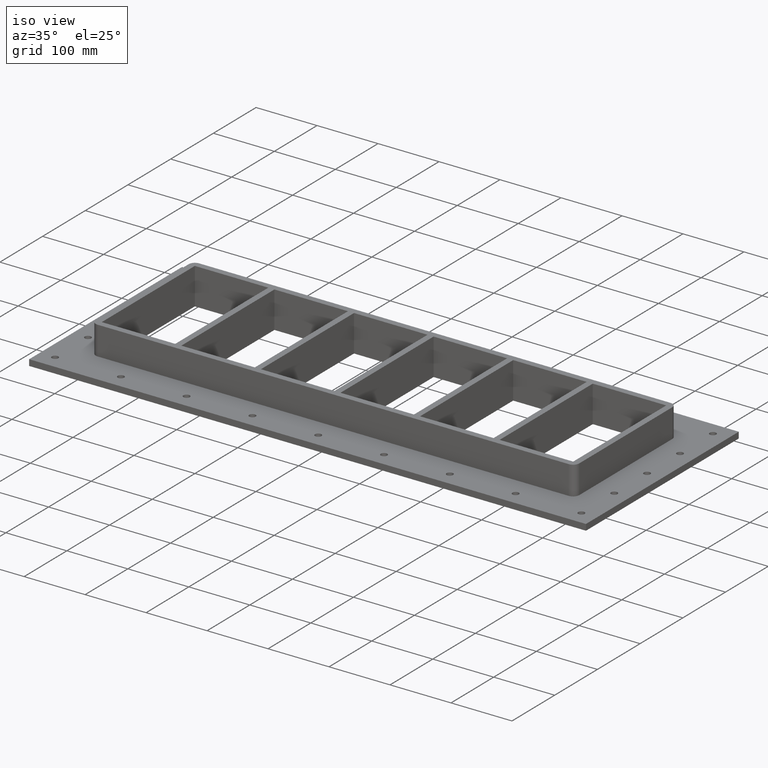
[diagram: clean part render]
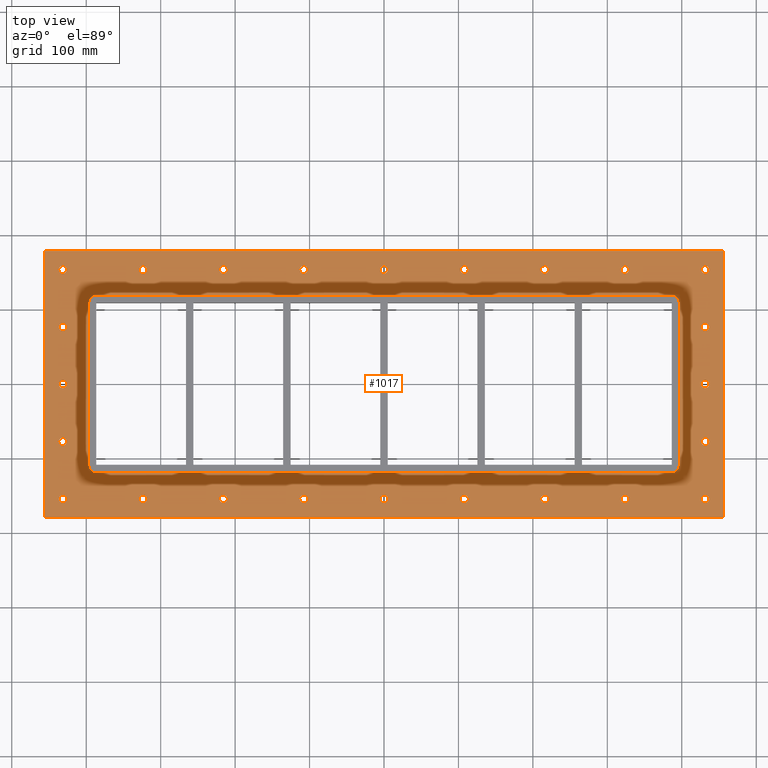
[diagram: tour spotlight — one face highlighted and labeled with its STEP entity id]
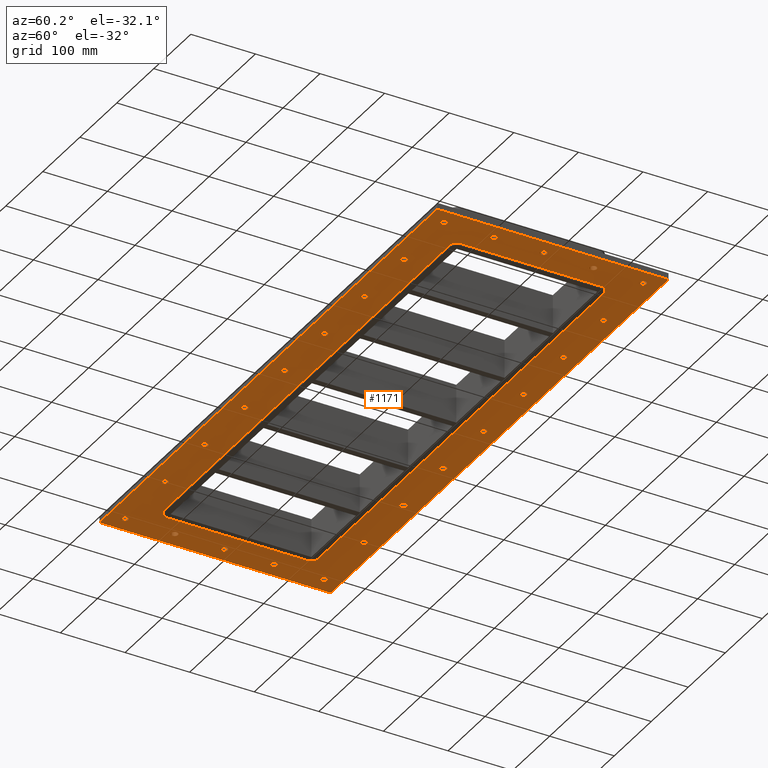
[diagram: tour spotlight — one face highlighted and labeled with its STEP entity id]
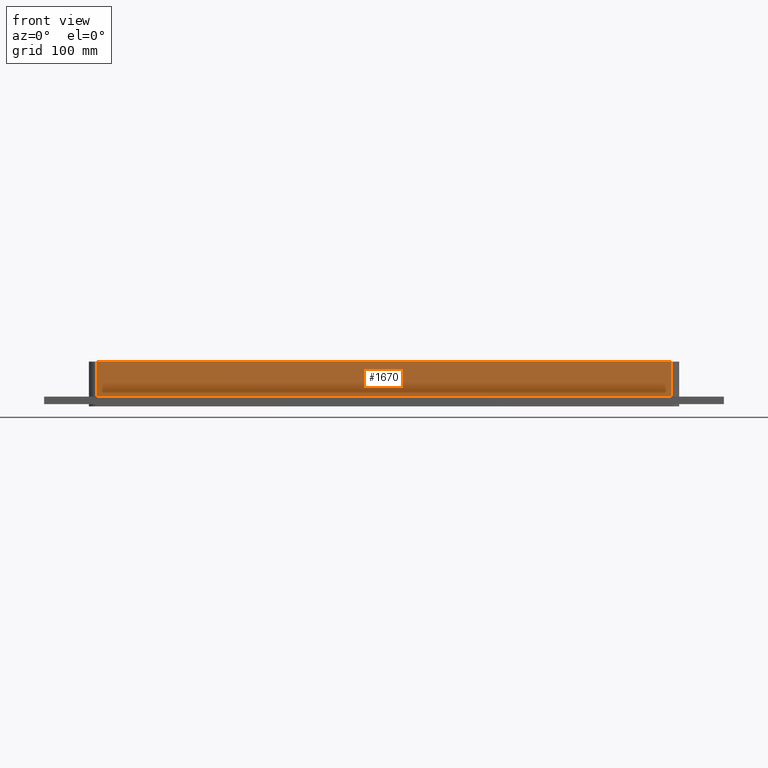
[diagram: tour spotlight — one face highlighted and labeled with its STEP entity id]
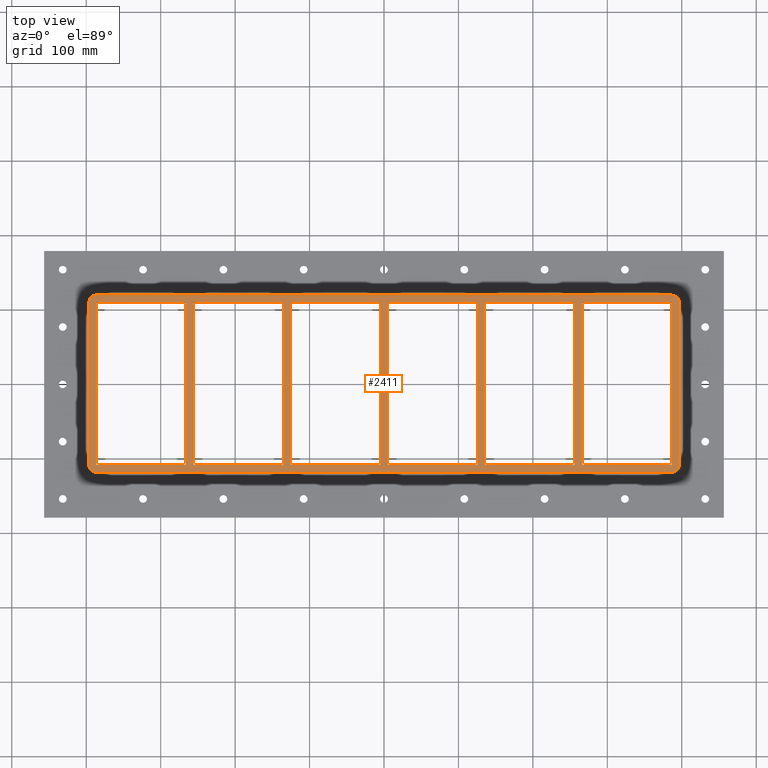
[diagram: tour spotlight — one face highlighted and labeled with its STEP entity id]
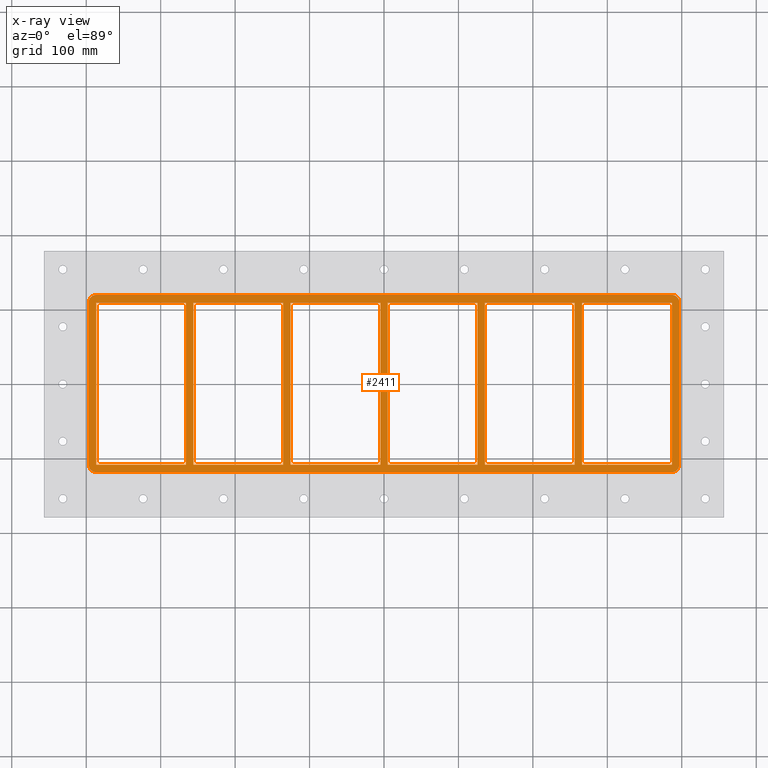
[diagram: x-ray of the same camera — body ghosted, this tour face saturated]
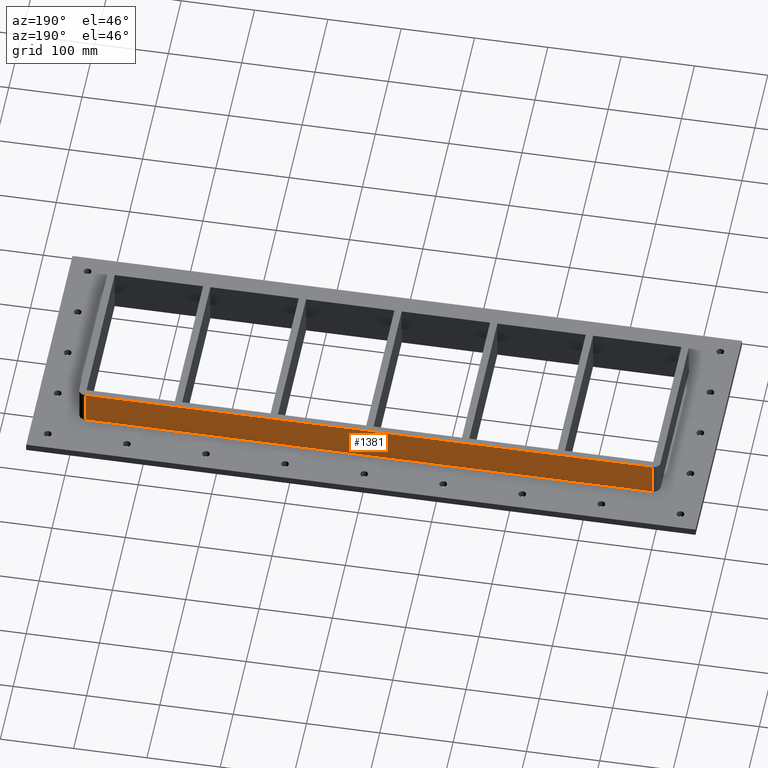
[diagram: tour spotlight — one face highlighted and labeled with its STEP entity id]
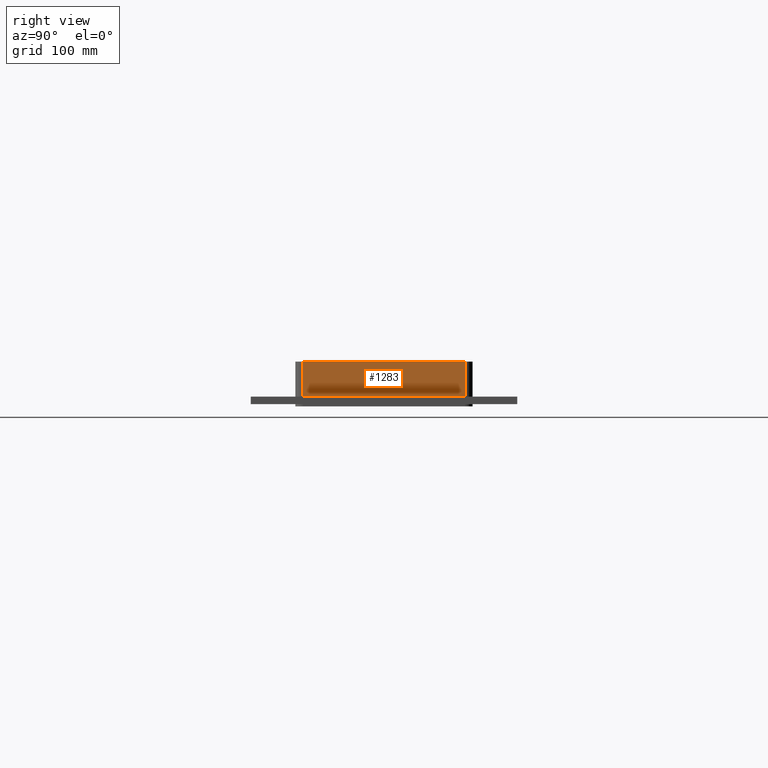
[diagram: tour spotlight — one face highlighted and labeled with its STEP entity id]
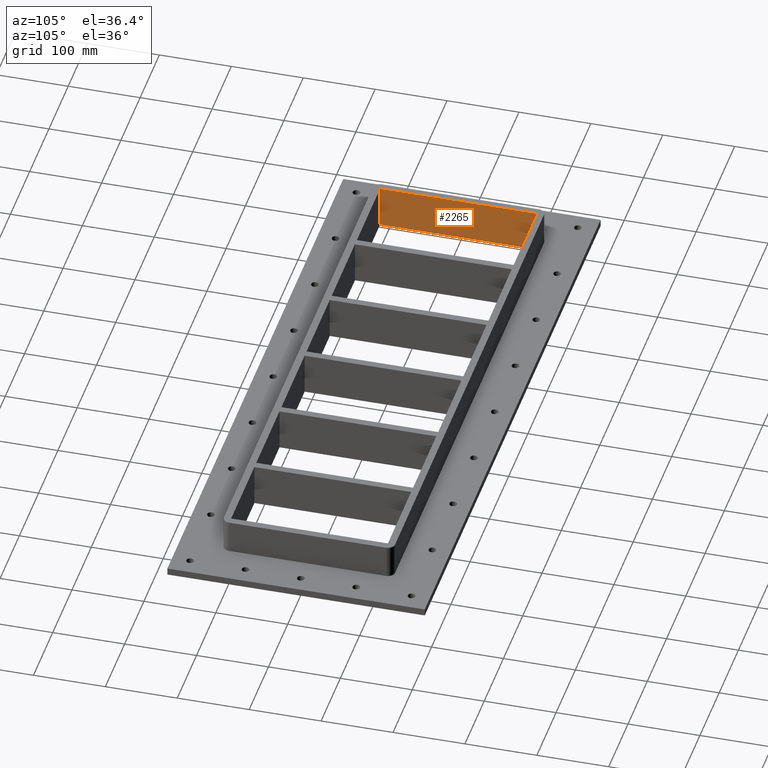
[diagram: tour spotlight — one face highlighted and labeled with its STEP entity id]
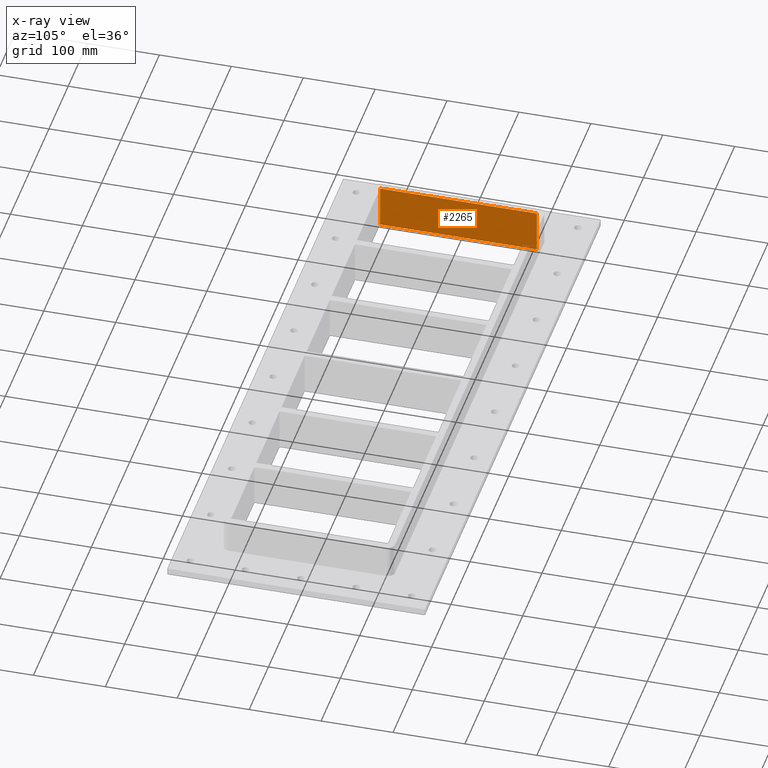
[diagram: x-ray of the same camera — body ghosted, this tour face saturated]
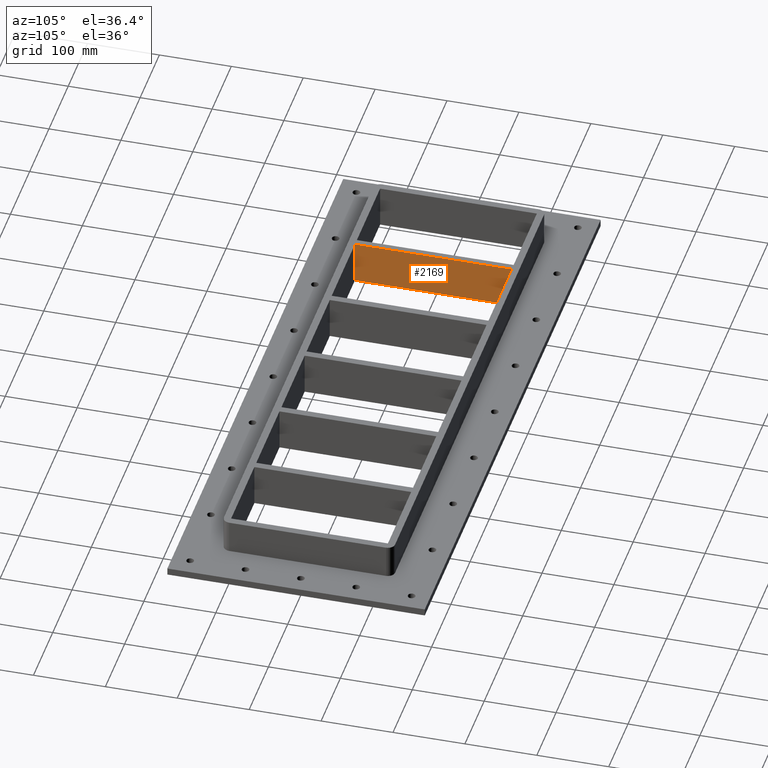
[diagram: tour spotlight — one face highlighted and labeled with its STEP entity id]
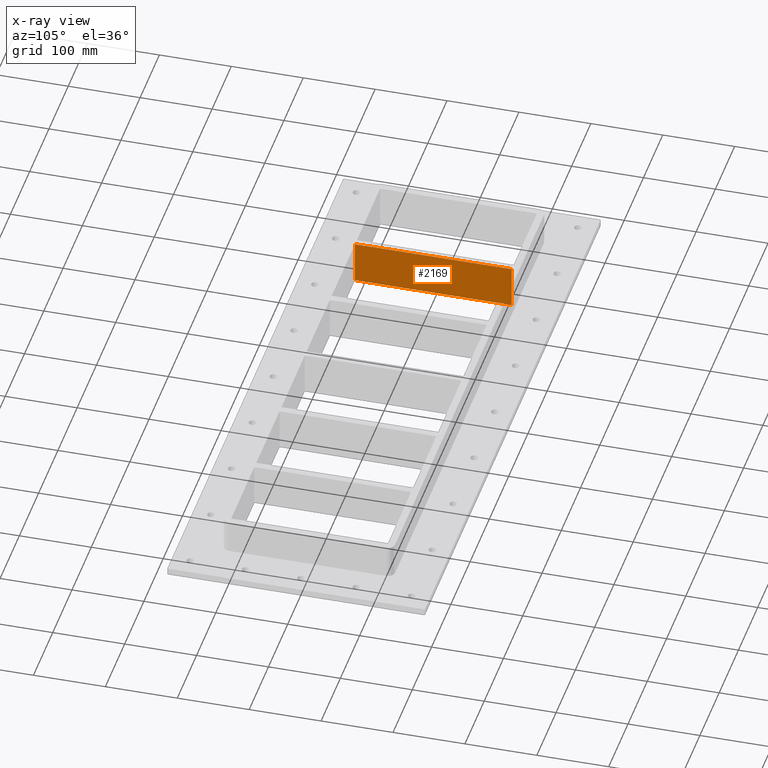
[diagram: x-ray of the same camera — body ghosted, this tour face saturated]
A machine part: a face-by-face anatomy tour. The part has 72 B-rep faces; the first image is the clean iso view, then the 8 largest visible faces are spotlighted one at a time (largest first), each with its STEP entity span.

Face 1 — top view, entity #1017. In plain terms, the highlighted planar face has unit normal (0, 0, 1).
Definition (entity closure, byte-faithful):
#84=CARTESIAN_POINT('',(-318.37500000000023,-154.00000000000003,-16.999999999999996));
#85=VERTEX_POINT('',#84);
#86=CARTESIAN_POINT('',(-323.62500000000017,-154.00000000000003,-17.000000000000028));
#87=DIRECTION('',(0.0,0.0,-1.0));
#88=DIRECTION('',(1.0,0.0,0.0));
#89=AXIS2_PLACEMENT_3D('',#86,#87,#88);
#90=CIRCLE('',#89,5.25);
#91=EDGE_CURVE('',#85,#85,#90,.T.);
#112=CARTESIAN_POINT('',(-210.50000000000006,-154.00000000000003,-16.999999999999996));
#113=VERTEX_POINT('',#112);
#114=CARTESIAN_POINT('',(-215.75000000000003,-154.00000000000003,-17.000000000000028));
#115=DIRECTION('',(0.0,0.0,-1.0));
#116=DIRECTION('',(1.0,0.0,0.0));
#117=AXIS2_PLACEMENT_3D('',#114,#115,#116);
#118=CIRCLE('',#117,5.25);
#119=EDGE_CURVE('',#113,#113,#118,.T.);
#140=CARTESIAN_POINT('',(-102.62500000000003,-154.00000000000003,-16.999999999999996));
#141=VERTEX_POINT('',#140);
#142=CARTESIAN_POINT('',(-107.87500000000001,-154.00000000000003,-17.000000000000028));
#143=DIRECTION('',(0.0,0.0,-1.0));
#144=DIRECTION('',(1.0,0.0,0.0));
#145=AXIS2_PLACEMENT_3D('',#142,#143,#144);
#146=CIRCLE('',#145,5.25);
#147=EDGE_CURVE('',#141,#141,#146,.T.);
#168=CARTESIAN_POINT('',(5.249999999999986,-154.0,-16.999999999999996));
#169=VERTEX_POINT('',#168);
#170=CARTESIAN_POINT('',(0.0,-154.0,-17.000000000000028));
#171=DIRECTION('',(0.0,0.0,-1.0));
#172=DIRECTION('',(1.0,0.0,0.0));
#173=AXIS2_PLACEMENT_3D('',#170,#171,#172);
#174=CIRCLE('',#173,5.25);
#175=EDGE_CURVE('',#169,#169,#174,.T.);
#196=CARTESIAN_POINT('',(113.125,-154.0,-16.999999999999996));
#197=VERTEX_POINT('',#196);
#198=CARTESIAN_POINT('',(107.87500000000001,-154.0,-17.000000000000028));
#199=DIRECTION('',(0.0,0.0,-1.0));
#200=DIRECTION('',(1.0,0.0,0.0));
#201=AXIS2_PLACEMENT_3D('',#198,#199,#200);
#202=CIRCLE('',#201,5.25);
#203=EDGE_CURVE('',#197,#197,#202,.T.);
#224=CARTESIAN_POINT('',(221.0,-154.0,-16.999999999999996));
#225=VERTEX_POINT('',#224);
#226=CARTESIAN_POINT('',(215.75000000000003,-154.0,-17.000000000000028));
#227=DIRECTION('',(0.0,0.0,-1.0));
#228=DIRECTION('',(1.0,0.0,0.0));
#229=AXIS2_PLACEMENT_3D('',#226,#227,#228);
#230=CIRCLE('',#229,5.25);
#231=EDGE_CURVE('',#225,#225,#230,.T.);
#252=CARTESIAN_POINT('',(328.875,-153.99999999999997,-16.999999999999996));
#253=VERTEX_POINT('',#252);
#254=CARTESIAN_POINT('',(323.62500000000006,-153.99999999999997,-17.000000000000028));
#255=DIRECTION('',(0.0,0.0,-1.0));
#256=DIRECTION('',(1.0,0.0,0.0));
#257=AXIS2_PLACEMENT_3D('',#254,#255,#256);
#258=CIRCLE('',#257,5.25);
#259=EDGE_CURVE('',#253,#253,#258,.T.);
#280=CARTESIAN_POINT('',(328.87500000000017,154.00000000000009,-16.999999999999996));
#281=VERTEX_POINT('',#280);
#282=CARTESIAN_POINT('',(323.62500000000017,154.00000000000009,-17.000000000000028));
#283=DIRECTION('',(0.0,0.0,-1.0));
#284=DIRECTION('',(1.0,0.0,0.0));
#285=AXIS2_PLACEMENT_3D('',#282,#283,#284);
#286=CIRCLE('',#285,5.25);
#287=EDGE_CURVE('',#281,#281,#286,.T.);
#308=CARTESIAN_POINT('',(221.0,154.00000000000006,-16.999999999999996));
#309=VERTEX_POINT('',#308);
#310=CARTESIAN_POINT('',(215.75000000000003,154.00000000000006,-17.000000000000028));
#311=DIRECTION('',(0.0,0.0,-1.0));
#312=DIRECTION('',(1.0,0.0,0.0));
#313=AXIS2_PLACEMENT_3D('',#310,#311,#312);
#314=CIRCLE('',#313,5.25);
#315=EDGE_CURVE('',#309,#309,#314,.T.);
#336=CARTESIAN_POINT('',(113.125,154.00000000000006,-16.999999999999996));
#337=VERTEX_POINT('',#336);
#338=CARTESIAN_POINT('',(107.87500000000001,154.00000000000006,-17.000000000000028));
#339=DIRECTION('',(0.0,0.0,-1.0));
#340=DIRECTION('',(1.0,0.0,0.0));
#341=AXIS2_PLACEMENT_3D('',#338,#339,#340);
#342=CIRCLE('',#341,5.25);
#343=EDGE_CURVE('',#337,#337,#342,.T.);
#364=CARTESIAN_POINT('',(5.249999999999986,154.00000000000003,-16.999999999999996));
#365=VERTEX_POINT('',#364);
#366=CARTESIAN_POINT('',(0.0,154.00000000000003,-17.000000000000028));
#367=DIRECTION('',(0.0,0.0,-1.0));
#368=DIRECTION('',(1.0,0.0,0.0));
#369=AXIS2_PLACEMENT_3D('',#366,#367,#368);
#370=CIRCLE('',#369,5.25);
#371=EDGE_CURVE('',#365,#365,#370,.T.);
#392=CARTESIAN_POINT('',(-102.62500000000003,154.00000000000003,-16.999999999999996));
#393=VERTEX_POINT('',#392);
#394=CARTESIAN_POINT('',(-107.87500000000001,154.00000000000003,-17.000000000000028));
#395=DIRECTION('',(0.0,0.0,-1.0));
#396=DIRECTION('',(1.0,0.0,0.0));
#397=AXIS2_PLACEMENT_3D('',#394,#395,#396);
#398=CIRCLE('',#397,5.25);
#399=EDGE_CURVE('',#393,#393,#398,.T.);
#420=CARTESIAN_POINT('',(-210.50000000000006,154.00000000000003,-16.999999999999996));
#421=VERTEX_POINT('',#420);
#422=CARTESIAN_POINT('',(-215.75000000000003,154.00000000000003,-17.000000000000028));
#423=DIRECTION('',(0.0,0.0,-1.0));
#424=DIRECTION('',(1.0,0.0,0.0));
#425=AXIS2_PLACEMENT_3D('',#422,#423,#424);
#426=CIRCLE('',#425,5.25);
#427=EDGE_CURVE('',#421,#421,#426,.T.);
#448=CARTESIAN_POINT('',(-318.37500000000006,154.00000000000003,-16.999999999999996));
#449=VERTEX_POINT('',#448);
#450=CARTESIAN_POINT('',(-323.62500000000006,154.00000000000003,-17.000000000000028));
#451=DIRECTION('',(0.0,0.0,-1.0));
#452=DIRECTION('',(1.0,0.0,0.0));
#453=AXIS2_PLACEMENT_3D('',#450,#451,#452);
#454=CIRCLE('',#453,5.25);
#455=EDGE_CURVE('',#449,#449,#454,.T.);
#476=CARTESIAN_POINT('',(436.75000000000006,-76.999999999999915,-16.999999999999996));
#477=VERTEX_POINT('',#476);
#478=CARTESIAN_POINT('',(431.50000000000006,-76.999999999999915,-17.000000000000028));
#479=DIRECTION('',(0.0,0.0,-1.0));
#480=DIRECTION('',(1.0,0.0,0.0));
#481=AXIS2_PLACEMENT_3D('',#478,#479,#480);
#482=CIRCLE('',#481,5.25);
#483=EDGE_CURVE('',#477,#477,#482,.T.);
#504=CARTESIAN_POINT('',(436.75000000000006,7.105427E-014,-16.999999999999996));
#505=VERTEX_POINT('',#504);
#506=CARTESIAN_POINT('',(431.50000000000006,7.105427E-014,-17.000000000000028));
#507=DIRECTION('',(0.0,0.0,-1.0));
#508=DIRECTION('',(1.0,0.0,0.0));
#509=AXIS2_PLACEMENT_3D('',#506,#507,#508);
#510=CIRCLE('',#509,5.25);
#511=EDGE_CURVE('',#505,#505,#510,.T.);
#532=CARTESIAN_POINT('',(436.75000000000006,77.000000000000085,-16.999999999999996));
#533=VERTEX_POINT('',#532);
#534=CARTESIAN_POINT('',(431.50000000000006,77.000000000000085,-17.000000000000028));
#535=DIRECTION('',(0.0,0.0,-1.0));
#536=DIRECTION('',(1.0,0.0,0.0));
#537=AXIS2_PLACEMENT_3D('',#534,#535,#536);
#538=CIRCLE('',#537,5.25);
#539=EDGE_CURVE('',#533,#533,#538,.T.);
#560=CARTESIAN_POINT('',(-426.25000000000006,76.999999999999915,-16.999999999999996));
#561=VERTEX_POINT('',#560);
#562=CARTESIAN_POINT('',(-431.50000000000006,76.999999999999915,-17.000000000000028));
#563=DIRECTION('',(0.0,0.0,-1.0));
#564=DIRECTION('',(1.0,0.0,0.0));
#565=AXIS2_PLACEMENT_3D('',#562,#563,#564);
#566=CIRCLE('',#565,5.25);
#567=EDGE_CURVE('',#561,#561,#566,.T.);
#588=CARTESIAN_POINT('',(-426.25000000000006,-7.105427E-014,-16.999999999999996));
#589=VERTEX_POINT('',#588);
#590=CARTESIAN_POINT('',(-431.50000000000006,-7.105427E-014,-17.000000000000028));
#591=DIRECTION('',(0.0,0.0,-1.0));
#592=DIRECTION('',(1.0,0.0,0.0));
#593=AXIS2_PLACEMENT_3D('',#590,#591,#592);
#594=CIRCLE('',#593,5.25);
#595=EDGE_CURVE('',#589,#589,#594,.T.);
#616=CARTESIAN_POINT('',(-426.25000000000006,-77.000000000000085,-16.999999999999996));
#617=VERTEX_POINT('',#616);
#618=CARTESIAN_POINT('',(-431.50000000000006,-77.000000000000085,-17.000000000000028));
#619=DIRECTION('',(0.0,0.0,-1.0));
#620=DIRECTION('',(1.0,0.0,0.0));
#621=AXIS2_PLACEMENT_3D('',#618,#619,#620);
#622=CIRCLE('',#621,5.25);
#623=EDGE_CURVE('',#617,#617,#622,.T.);
#644=CARTESIAN_POINT('',(-426.25000000000006,154.00000000000003,-16.999999999999996));
#645=VERTEX_POINT('',#644);
#646=CARTESIAN_POINT('',(-431.50000000000006,154.00000000000003,-17.000000000000028));
#647=DIRECTION('',(0.0,0.0,-1.0));
#648=DIRECTION('',(1.0,0.0,0.0));
#649=AXIS2_PLACEMENT_3D('',#646,#647,#648);
#650=CIRCLE('',#649,5.25);
#651=EDGE_CURVE('',#645,#645,#650,.T.);
#672=CARTESIAN_POINT('',(436.75000000000006,154.00000000000009,-16.999999999999996));
#673=VERTEX_POINT('',#672);
#674=CARTESIAN_POINT('',(431.50000000000006,154.00000000000009,-17.000000000000028));
#675=DIRECTION('',(0.0,0.0,-1.0));
#676=DIRECTION('',(1.0,0.0,0.0));
#677=AXIS2_PLACEMENT_3D('',#674,#675,#676);
#678=CIRCLE('',#677,5.25);
#679=EDGE_CURVE('',#673,#673,#678,.T.);
#700=CARTESIAN_POINT('',(436.75000000000006,-153.99999999999994,-16.999999999999996));
#701=VERTEX_POINT('',#700);
#702=CARTESIAN_POINT('',(431.50000000000006,-153.99999999999994,-17.000000000000028));
#703=DIRECTION('',(0.0,0.0,-1.0));
#704=DIRECTION('',(1.0,0.0,0.0));
#705=AXIS2_PLACEMENT_3D('',#702,#703,#704);
#706=CIRCLE('',#705,5.25);
#707=EDGE_CURVE('',#701,#701,#706,.T.);
#728=CARTESIAN_POINT('',(-426.25000000000006,-154.00000000000009,-16.999999999999996));
#729=VERTEX_POINT('',#728);
#730=CARTESIAN_POINT('',(-431.50000000000006,-154.00000000000009,-17.000000000000028));
#731=DIRECTION('',(0.0,0.0,-1.0));
#732=DIRECTION('',(1.0,0.0,0.0));
#733=AXIS2_PLACEMENT_3D('',#730,#731,#732);
#734=CIRCLE('',#733,5.25);
#735=EDGE_CURVE('',#729,#729,#734,.T.);
#755=CARTESIAN_POINT('',(-456.50000000000006,-179.00000000000006,-17.0));
#756=VERTEX_POINT('',#755);
#763=CARTESIAN_POINT('',(-456.50000000000006,179.00000000000003,-17.0));
#764=VERTEX_POINT('',#763);
#765=CARTESIAN_POINT('',(-456.50000000000006,179.0,-17.0));
#766=DIRECTION('',(0.0,-1.0,0.0));
#767=VECTOR('',#766,358.00000000000006);
#768=LINE('',#765,#767);
#769=EDGE_CURVE('',#764,#756,#768,.T.);
#794=CARTESIAN_POINT('',(456.50000000000006,179.00000000000009,-17.0));
#795=VERTEX_POINT('',#794);
#796=CARTESIAN_POINT('',(456.50000000000006,179.00000000000011,-17.0));
#797=DIRECTION('',(-1.0,0.0,0.0));
#798=VECTOR('',#797,913.00000000000011);
#799=LINE('',#796,#798);
#800=EDGE_CURVE('',#795,#764,#799,.T.);
#825=CARTESIAN_POINT('',(456.50000000000006,-178.99999999999994,-17.0));
#826=VERTEX_POINT('',#825);
#827=CARTESIAN_POINT('',(456.50000000000006,-178.99999999999997,-17.0));
#828=DIRECTION('',(0.0,1.0,0.0));
#829=VECTOR('',#828,358.00000000000006);
#830=LINE('',#827,#829);
#831=EDGE_CURVE('',#826,#795,#830,.T.);
#854=CARTESIAN_POINT('',(-456.50000000000006,-179.00000000000006,-17.0));
#855=DIRECTION('',(1.0,0.0,0.0));
#856=VECTOR('',#855,913.00000000000011);
#857=LINE('',#854,#856);
#858=EDGE_CURVE('',#756,#826,#857,.T.);
#864=CARTESIAN_POINT('',(0.0,3.684089E-014,-16.999999999999996));
#865=DIRECTION('',(0.0,0.0,1.0));
#866=DIRECTION('',(1.0,0.0,0.0));
#867=AXIS2_PLACEMENT_3D('',#864,#865,#866);
#868=PLANE('',#867);
#869=ORIENTED_EDGE('',*,*,#858,.T.);
#870=ORIENTED_EDGE('',*,*,#831,.T.);
#871=ORIENTED_EDGE('',*,*,#800,.T.);
#872=ORIENTED_EDGE('',*,*,#769,.T.);
#873=EDGE_LOOP('',(#869,#870,#871,#872));
#874=FACE_OUTER_BOUND('',#873,.T.);
#875=ORIENTED_EDGE('',*,*,#91,.T.);
#876=EDGE_LOOP('',(#875));
#877=FACE_BOUND('',#876,.T.);
#878=ORIENTED_EDGE('',*,*,#119,.T.);
#879=EDGE_LOOP('',(#878));
#880=FACE_BOUND('',#879,.T.);
#881=ORIENTED_EDGE('',*,*,#147,.T.);
#882=EDGE_LOOP('',(#881));
#883=FACE_BOUND('',#882,.T.);
#884=ORIENTED_EDGE('',*,*,#175,.T.);
#885=EDGE_LOOP('',(#884));
#886=FACE_BOUND('',#885,.T.);
#887=ORIENTED_EDGE('',*,*,#203,.T.);
#888=EDGE_LOOP('',(#887));
#889=FACE_BOUND('',#888,.T.);
#890=ORIENTED_EDGE('',*,*,#231,.T.);
#891=EDGE_LOOP('',(#890));
#892=FACE_BOUND('',#891,.T.);
#893=ORIENTED_EDGE('',*,*,#259,.T.);
#894=EDGE_LOOP('',(#893));
#895=FACE_BOUND('',#894,.T.);
#896=ORIENTED_EDGE('',*,*,#287,.T.);
#897=EDGE_LOOP('',(#896));
#898=FACE_BOUND('',#897,.T.);
#899=ORIENTED_EDGE('',*,*,#315,.T.);
#900=EDGE_LOOP('',(#899));
#901=FACE_BOUND('',#900,.T.);
#902=ORIENTED_EDGE('',*,*,#343,.T.);
#903=EDGE_LOOP('',(#902));
#904=FACE_BOUND('',#903,.T.);
#905=ORIENTED_EDGE('',*,*,#371,.T.);
#906=EDGE_LOOP('',(#905));
#907=FACE_BOUND('',#906,.T.);
#908=ORIENTED_EDGE('',*,*,#399,.T.);
#909=EDGE_LOOP('',(#908));
#910=FACE_BOUND('',#909,.T.);
#911=ORIENTED_EDGE('',*,*,#427,.T.);
#912=EDGE_LOOP('',(#911));
#913=FACE_BOUND('',#912,.T.);
#914=ORIENTED_EDGE('',*,*,#455,.T.);
#915=EDGE_LOOP('',(#914));
#916=FACE_BOUND('',#915,.T.);
#917=ORIENTED_EDGE('',*,*,#483,.T.);
#918=EDGE_LOOP('',(#917));
#919=FACE_BOUND('',#918,.T.);
#920=ORIENTED_EDGE('',*,*,#511,.T.);
#921=EDGE_LOOP('',(#920));
#922=FACE_BOUND('',#921,.T.);
#923=ORIENTED_EDGE('',*,*,#539,.T.);
#924=EDGE_LOOP('',(#923));
#925=FACE_BOUND('',#924,.T.);
#926=ORIENTED_EDGE('',*,*,#567,.T.);
#927=EDGE_LOOP('',(#926));
#928=FACE_BOUND('',#927,.T.);
#929=ORIENTED_EDGE('',*,*,#595,.T.);
#930=EDGE_LOOP('',(#929));
#931=FACE_BOUND('',#930,.T.);
#932=ORIENTED_EDGE('',*,*,#623,.T.);
#933=EDGE_LOOP('',(#932));
#934=FACE_BOUND('',#933,.T.);
#935=ORIENTED_EDGE('',*,*,#651,.T.);
#936=EDGE_LOOP('',(#935));
#937=FACE_BOUND('',#936,.T.);
#938=ORIENTED_EDGE('',*,*,#679,.T.);
#939=EDGE_LOOP('',(#938));
#940=FACE_BOUND('',#939,.T.);
#941=ORIENTED_EDGE('',*,*,#707,.T.);
#942=EDGE_LOOP('',(#941));
#943=FACE_BOUND('',#942,.T.);
#944=ORIENTED_EDGE('',*,*,#735,.T.);
#945=EDGE_LOOP('',(#944));
#946=FACE_BOUND('',#945,.T.);
#947=CARTESIAN_POINT('',(396.50000000000006,109.00000000000007,-17.0));
#948=VERTEX_POINT('',#947);
#949=CARTESIAN_POINT('',(386.50000000000006,119.00000000000007,-17.0));
#950=VERTEX_POINT('',#949);
#951=CARTESIAN_POINT('',(386.50000000000006,108.99999999999999,-16.999999999999996));
#952=DIRECTION('',(0.0,0.0,1.0));
#953=DIRECTION('',(0.707106781186547,0.707106781186547,0.0));
#954=AXIS2_PLACEMENT_3D('',#951,#952,#953);
#955=CIRCLE('',#954,9.999999999999998);
#956=EDGE_CURVE('',#948,#950,#955,.T.);
#957=ORIENTED_EDGE('',*,*,#956,.F.);
#958=CARTESIAN_POINT('',(396.50000000000006,-108.99999999999997,-17.0));
#959=VERTEX_POINT('',#958);
#960=CARTESIAN_POINT('',(396.50000000000006,-108.99999999999997,-16.999999999999996));
#961=DIRECTION('',(0.0,1.0,0.0));
#962=VECTOR('',#961,218.00000000000006);
#963=LINE('',#960,#962);
#964=EDGE_CURVE('',#959,#948,#963,.T.);
#965=ORIENTED_EDGE('',*,*,#964,.F.);
#966=CARTESIAN_POINT('',(386.50000000000006,-118.99999999999997,-17.0));
#967=VERTEX_POINT('',#966);
#968=CARTESIAN_POINT('',(386.50000000000006,-108.99999999999999,-16.999999999999996));
#969=DIRECTION('',(0.0,0.0,1.0));
#970=DIRECTION('',(0.707106781186547,-0.707106781186547,0.0));
#971=AXIS2_PLACEMENT_3D('',#968,#969,#970);
#972=CIRCLE('',#971,9.999999999999998);
#973=EDGE_CURVE('',#967,#959,#972,.T.);
#974=ORIENTED_EDGE('',*,*,#973,.F.);
#975=CARTESIAN_POINT('',(-386.50000000000006,-119.00000000000007,-17.0));
#976=VERTEX_POINT('',#975);
#977=CARTESIAN_POINT('',(-386.50000000000006,-118.99999999999999,-16.999999999999996));
#978=DIRECTION('',(1.0,0.0,0.0));
#979=VECTOR('',#978,773.00000000000011);
#980=LINE('',#977,#979);
#981=EDGE_CURVE('',#976,#967,#980,.T.);
#982=ORIENTED_EDGE('',*,*,#981,.F.);
#983=CARTESIAN_POINT('',(-396.50000000000006,-109.00000000000007,-17.0));
#984=VERTEX_POINT('',#983);
#985=CARTESIAN_POINT('',(-386.50000000000011,-108.99999999999999,-16.999999999999996));
#986=DIRECTION('',(0.0,0.0,1.0));
#987=DIRECTION('',(-0.707106781186547,-0.707106781186547,0.0));
#988=AXIS2_PLACEMENT_3D('',#985,#986,#987);
#989=CIRCLE('',#988,9.999999999999998);
#990=EDGE_CURVE('',#984,#976,#989,.T.);
#991=ORIENTED_EDGE('',*,*,#990,.F.);
#992=CARTESIAN_POINT('',(-396.50000000000006,108.99999999999997,-17.0));
#993=VERTEX_POINT('',#992);
#994=CARTESIAN_POINT('',(-396.50000000000011,108.99999999999997,-16.999999999999996));
#995=DIRECTION('',(0.0,-1.0,0.0));
#996=VECTOR('',#995,218.00000000000003);
#997=LINE('',#994,#996);
#998=EDGE_CURVE('',#993,#984,#997,.T.);
#999=ORIENTED_EDGE('',*,*,#998,.F.);
#1000=CARTESIAN_POINT('',(-386.50000000000006,118.99999999999999,-17.0));
#1001=VERTEX_POINT('',#1000);
#1002=CARTESIAN_POINT('',(-386.50000000000011,109.00000000000006,-16.999999999999996));
#1003=DIRECTION('',(0.0,0.0,1.0));
#1004=DIRECTION('',(-0.707106781186547,0.707106781186547,0.0));
#1005=AXIS2_PLACEMENT_3D('',#1002,#1003,#1004);
#1006=CIRCLE('',#1005,9.999999999999998);
#1007=EDGE_CURVE('',#1001,#993,#1006,.T.);
#1008=ORIENTED_EDGE('',*,*,#1007,.F.);
#1009=CARTESIAN_POINT('',(386.50000000000006,118.99999999999999,-16.999999999999996));
#1010=DIRECTION('',(-1.0,0.0,0.0));
#1011=VECTOR('',#1010,773.00000000000023);
#1012=LINE('',#1009,#1011);
#1013=EDGE_CURVE('',#950,#1001,#1012,.T.);
#1014=ORIENTED_EDGE('',*,*,#1013,.F.);
#1015=EDGE_LOOP('',(#957,#965,#974,#982,#991,#999,#1008,#1014));
#1016=FACE_BOUND('',#1015,.T.);
#1017=ADVANCED_FACE('',(#874,#877,#880,#883,#886,#889,#892,#895,#898,#901,#904,#907,#910,#913,#916,#919,#922,#925,#928,#931,#934,#937,#940,#943,#946,#1016),#868,.T.);

Face 2 — auxiliary view, entity #1171. In plain terms, the highlighted planar face has unit normal (0, 0, 1).
Definition (entity closure, byte-faithful):
#73=CARTESIAN_POINT('',(-328.87500000000017,-154.00000000000003,-27.000000000000028));
#74=VERTEX_POINT('',#73);
#75=CARTESIAN_POINT('',(-323.62500000000017,-154.00000000000003,-27.000000000000028));
#76=DIRECTION('',(0.0,0.0,1.0));
#77=DIRECTION('',(1.0,0.0,0.0));
#78=AXIS2_PLACEMENT_3D('',#75,#76,#77);
#79=CIRCLE('',#78,5.25);
#80=EDGE_CURVE('',#74,#74,#79,.T.);
#101=CARTESIAN_POINT('',(-221.0,-154.00000000000003,-27.000000000000028));
#102=VERTEX_POINT('',#101);
#103=CARTESIAN_POINT('',(-215.75000000000003,-154.00000000000003,-27.000000000000028));
#104=DIRECTION('',(0.0,0.0,1.0));
#105=DIRECTION('',(1.0,0.0,0.0));
#106=AXIS2_PLACEMENT_3D('',#103,#104,#105);
#107=CIRCLE('',#106,5.25);
#108=EDGE_CURVE('',#102,#102,#107,.T.);
#129=CARTESIAN_POINT('',(-113.125,-154.00000000000003,-27.000000000000028));
#130=VERTEX_POINT('',#129);
#131=CARTESIAN_POINT('',(-107.87500000000001,-154.00000000000003,-27.000000000000028));
#132=DIRECTION('',(0.0,0.0,1.0));
#133=DIRECTION('',(1.0,0.0,0.0));
#134=AXIS2_PLACEMENT_3D('',#131,#132,#133);
#135=CIRCLE('',#134,5.25);
#136=EDGE_CURVE('',#130,#130,#135,.T.);
#157=CARTESIAN_POINT('',(-5.249999999999986,-154.0,-27.000000000000028));
#158=VERTEX_POINT('',#157);
#159=CARTESIAN_POINT('',(0.0,-154.0,-27.000000000000028));
#160=DIRECTION('',(0.0,0.0,1.0));
#161=DIRECTION('',(1.0,0.0,0.0));
#162=AXIS2_PLACEMENT_3D('',#159,#160,#161);
#163=CIRCLE('',#162,5.25);
#164=EDGE_CURVE('',#158,#158,#163,.T.);
#185=CARTESIAN_POINT('',(102.62500000000003,-154.0,-27.000000000000028));
#186=VERTEX_POINT('',#185);
#187=CARTESIAN_POINT('',(107.87500000000001,-154.0,-27.000000000000028));
#188=DIRECTION('',(0.0,0.0,1.0));
#189=DIRECTION('',(1.0,0.0,0.0));
#190=AXIS2_PLACEMENT_3D('',#187,#188,#189);
#191=CIRCLE('',#190,5.25);
#192=EDGE_CURVE('',#186,#186,#191,.T.);
#213=CARTESIAN_POINT('',(210.50000000000006,-154.0,-27.000000000000028));
#214=VERTEX_POINT('',#213);
#215=CARTESIAN_POINT('',(215.75000000000003,-154.0,-27.000000000000028));
#216=DIRECTION('',(0.0,0.0,1.0));
#217=DIRECTION('',(1.0,0.0,0.0));
#218=AXIS2_PLACEMENT_3D('',#215,#216,#217);
#219=CIRCLE('',#218,5.25);
#220=EDGE_CURVE('',#214,#214,#219,.T.);
#241=CARTESIAN_POINT('',(318.37500000000006,-153.99999999999997,-27.000000000000028));
#242=VERTEX_POINT('',#241);
#243=CARTESIAN_POINT('',(323.62500000000006,-153.99999999999997,-27.000000000000028));
#244=DIRECTION('',(0.0,0.0,1.0));
#245=DIRECTION('',(1.0,0.0,0.0));
#246=AXIS2_PLACEMENT_3D('',#243,#244,#245);
#247=CIRCLE('',#246,5.25);
#248=EDGE_CURVE('',#242,#242,#247,.T.);
#269=CARTESIAN_POINT('',(318.37500000000023,154.00000000000009,-27.000000000000028));
#270=VERTEX_POINT('',#269);
#271=CARTESIAN_POINT('',(323.62500000000017,154.00000000000009,-27.000000000000028));
#272=DIRECTION('',(0.0,0.0,1.0));
#273=DIRECTION('',(1.0,0.0,0.0));
#274=AXIS2_PLACEMENT_3D('',#271,#272,#273);
#275=CIRCLE('',#274,5.25);
#276=EDGE_CURVE('',#270,#270,#275,.T.);
#297=CARTESIAN_POINT('',(210.50000000000006,154.00000000000006,-27.000000000000028));
#298=VERTEX_POINT('',#297);
#299=CARTESIAN_POINT('',(215.75000000000003,154.00000000000006,-27.000000000000028));
#300=DIRECTION('',(0.0,0.0,1.0));
#301=DIRECTION('',(1.0,0.0,0.0));
#302=AXIS2_PLACEMENT_3D('',#299,#300,#301);
#303=CIRCLE('',#302,5.25);
#304=EDGE_CURVE('',#298,#298,#303,.T.);
#325=CARTESIAN_POINT('',(102.62500000000003,154.00000000000006,-27.000000000000028));
#326=VERTEX_POINT('',#325);
#327=CARTESIAN_POINT('',(107.87500000000001,154.00000000000006,-27.000000000000028));
#328=DIRECTION('',(0.0,0.0,1.0));
#329=DIRECTION('',(1.0,0.0,0.0));
#330=AXIS2_PLACEMENT_3D('',#327,#328,#329);
#331=CIRCLE('',#330,5.25);
#332=EDGE_CURVE('',#326,#326,#331,.T.);
#353=CARTESIAN_POINT('',(-5.249999999999986,154.00000000000003,-27.000000000000028));
#354=VERTEX_POINT('',#353);
#355=CARTESIAN_POINT('',(0.0,154.00000000000003,-27.000000000000028));
#356=DIRECTION('',(0.0,0.0,1.0));
#357=DIRECTION('',(1.0,0.0,0.0));
#358=AXIS2_PLACEMENT_3D('',#355,#356,#357);
#359=CIRCLE('',#358,5.25);
#360=EDGE_CURVE('',#354,#354,#359,.T.);
#381=CARTESIAN_POINT('',(-113.125,154.00000000000003,-27.000000000000028));
#382=VERTEX_POINT('',#381);
#383=CARTESIAN_POINT('',(-107.87500000000001,154.00000000000003,-27.000000000000028));
#384=DIRECTION('',(0.0,0.0,1.0));
#385=DIRECTION('',(1.0,0.0,0.0));
#386=AXIS2_PLACEMENT_3D('',#383,#384,#385);
#387=CIRCLE('',#386,5.25);
#388=EDGE_CURVE('',#382,#382,#387,.T.);
#409=CARTESIAN_POINT('',(-221.0,154.00000000000003,-27.000000000000028));
#410=VERTEX_POINT('',#409);
#411=CARTESIAN_POINT('',(-215.75000000000003,154.00000000000003,-27.000000000000028));
#412=DIRECTION('',(0.0,0.0,1.0));
#413=DIRECTION('',(1.0,0.0,0.0));
#414=AXIS2_PLACEMENT_3D('',#411,#412,#413);
#415=CIRCLE('',#414,5.25);
#416=EDGE_CURVE('',#410,#410,#415,.T.);
#437=CARTESIAN_POINT('',(-328.875,154.00000000000003,-27.000000000000028));
#438=VERTEX_POINT('',#437);
#439=CARTESIAN_POINT('',(-323.62500000000006,154.00000000000003,-27.000000000000028));
#440=DIRECTION('',(0.0,0.0,1.0));
#441=DIRECTION('',(1.0,0.0,0.0));
#442=AXIS2_PLACEMENT_3D('',#439,#440,#441);
#443=CIRCLE('',#442,5.25);
#444=EDGE_CURVE('',#438,#438,#443,.T.);
#465=CARTESIAN_POINT('',(426.25000000000006,-76.999999999999915,-27.000000000000028));
#466=VERTEX_POINT('',#465);
#467=CARTESIAN_POINT('',(431.50000000000006,-76.999999999999915,-27.000000000000028));
#468=DIRECTION('',(0.0,0.0,1.0));
#469=DIRECTION('',(1.0,0.0,0.0));
#470=AXIS2_PLACEMENT_3D('',#467,#468,#469);
#471=CIRCLE('',#470,5.25);
#472=EDGE_CURVE('',#466,#466,#471,.T.);
#493=CARTESIAN_POINT('',(426.25000000000006,7.105427E-014,-27.000000000000028));
#494=VERTEX_POINT('',#493);
#495=CARTESIAN_POINT('',(431.50000000000006,7.105427E-014,-27.000000000000028));
#496=DIRECTION('',(0.0,0.0,1.0));
#497=DIRECTION('',(1.0,0.0,0.0));
#498=AXIS2_PLACEMENT_3D('',#495,#496,#497);
#499=CIRCLE('',#498,5.25);
#500=EDGE_CURVE('',#494,#494,#499,.T.);
#521=CARTESIAN_POINT('',(426.25000000000006,77.000000000000085,-27.000000000000028));
#522=VERTEX_POINT('',#521);
#523=CARTESIAN_POINT('',(431.50000000000006,77.000000000000085,-27.000000000000028));
#524=DIRECTION('',(0.0,0.0,1.0));
#525=DIRECTION('',(1.0,0.0,0.0));
#526=AXIS2_PLACEMENT_3D('',#523,#524,#525);
#527=CIRCLE('',#526,5.25);
#528=EDGE_CURVE('',#522,#522,#527,.T.);
#549=CARTESIAN_POINT('',(-436.75000000000006,76.999999999999915,-27.000000000000028));
#550=VERTEX_POINT('',#549);
#551=CARTESIAN_POINT('',(-431.50000000000006,76.999999999999915,-27.000000000000028));
#552=DIRECTION('',(0.0,0.0,1.0));
#553=DIRECTION('',(1.0,0.0,0.0));
#554=AXIS2_PLACEMENT_3D('',#551,#552,#553);
#555=CIRCLE('',#554,5.25);
#556=EDGE_CURVE('',#550,#550,#555,.T.);
#577=CARTESIAN_POINT('',(-436.75000000000006,-7.105427E-014,-27.000000000000028));
#578=VERTEX_POINT('',#577);
#579=CARTESIAN_POINT('',(-431.50000000000006,-7.105427E-014,-27.000000000000028));
#580=DIRECTION('',(0.0,0.0,1.0));
#581=DIRECTION('',(1.0,0.0,0.0));
#582=AXIS2_PLACEMENT_3D('',#579,#580,#581);
#583=CIRCLE('',#582,5.25);
#584=EDGE_CURVE('',#578,#578,#583,.T.);
#605=CARTESIAN_POINT('',(-436.75000000000006,-77.000000000000085,-27.000000000000028));
#606=VERTEX_POINT('',#605);
#607=CARTESIAN_POINT('',(-431.50000000000006,-77.000000000000085,-27.000000000000028));
#608=DIRECTION('',(0.0,0.0,1.0));
#609=DIRECTION('',(1.0,0.0,0.0));
#610=AXIS2_PLACEMENT_3D('',#607,#608,#609);
#611=CIRCLE('',#610,5.25);
#612=EDGE_CURVE('',#606,#606,#611,.T.);
#633=CARTESIAN_POINT('',(-436.75000000000006,154.00000000000003,-27.000000000000028));
#634=VERTEX_POINT('',#633);
#635=CARTESIAN_POINT('',(-431.50000000000006,154.00000000000003,-27.000000000000028));
#636=DIRECTION('',(0.0,0.0,1.0));
#637=DIRECTION('',(1.0,0.0,0.0));
#638=AXIS2_PLACEMENT_3D('',#635,#636,#637);
#639=CIRCLE('',#638,5.25);
#640=EDGE_CURVE('',#634,#634,#639,.T.);
#661=CARTESIAN_POINT('',(426.25000000000006,154.00000000000009,-27.000000000000028));
#662=VERTEX_POINT('',#661);
#663=CARTESIAN_POINT('',(431.50000000000006,154.00000000000009,-27.000000000000028));
#664=DIRECTION('',(0.0,0.0,1.0));
#665=DIRECTION('',(1.0,0.0,0.0));
#666=AXIS2_PLACEMENT_3D('',#663,#664,#665);
#667=CIRCLE('',#666,5.25);
#668=EDGE_CURVE('',#662,#662,#667,.T.);
#689=CARTESIAN_POINT('',(426.25000000000006,-153.99999999999994,-27.000000000000028));
#690=VERTEX_POINT('',#689);
#691=CARTESIAN_POINT('',(431.50000000000006,-153.99999999999994,-27.000000000000028));
#692=DIRECTION('',(0.0,0.0,1.0));
#693=DIRECTION('',(1.0,0.0,0.0));
#694=AXIS2_PLACEMENT_3D('',#691,#692,#693);
#695=CIRCLE('',#694,5.25);
#696=EDGE_CURVE('',#690,#690,#695,.T.);
#717=CARTESIAN_POINT('',(-436.75000000000006,-154.00000000000009,-27.000000000000028));
#718=VERTEX_POINT('',#717);
#719=CARTESIAN_POINT('',(-431.50000000000006,-154.00000000000009,-27.000000000000028));
#720=DIRECTION('',(0.0,0.0,1.0));
#721=DIRECTION('',(1.0,0.0,0.0));
#722=AXIS2_PLACEMENT_3D('',#719,#720,#721);
#723=CIRCLE('',#722,5.25);
#724=EDGE_CURVE('',#718,#718,#723,.T.);
#745=CARTESIAN_POINT('',(-456.50000000000006,-179.00000000000006,-27.0));
#746=VERTEX_POINT('',#745);
#747=CARTESIAN_POINT('',(-456.50000000000006,179.0,-27.0));
#748=VERTEX_POINT('',#747);
#749=CARTESIAN_POINT('',(-456.50000000000006,-179.00000000000006,-27.0));
#750=DIRECTION('',(0.0,1.0,0.0));
#751=VECTOR('',#750,358.00000000000006);
#752=LINE('',#749,#751);
#753=EDGE_CURVE('',#746,#748,#752,.T.);
#785=CARTESIAN_POINT('',(456.50000000000006,179.00000000000009,-27.0));
#786=VERTEX_POINT('',#785);
#787=CARTESIAN_POINT('',(-456.50000000000006,179.0,-27.0));
#788=DIRECTION('',(1.0,0.0,0.0));
#789=VECTOR('',#788,913.00000000000011);
#790=LINE('',#787,#789);
#791=EDGE_CURVE('',#748,#786,#790,.T.);
#816=CARTESIAN_POINT('',(456.50000000000006,-178.99999999999994,-27.0));
#817=VERTEX_POINT('',#816);
#818=CARTESIAN_POINT('',(456.50000000000006,179.00000000000009,-27.0));
#819=DIRECTION('',(0.0,-1.0,0.0));
#820=VECTOR('',#819,358.00000000000006);
#821=LINE('',#818,#820);
#822=EDGE_CURVE('',#786,#817,#821,.T.);
#847=CARTESIAN_POINT('',(456.50000000000006,-178.99999999999994,-27.0));
#848=DIRECTION('',(-1.0,0.0,0.0));
#849=VECTOR('',#848,913.00000000000011);
#850=LINE('',#847,#849);
#851=EDGE_CURVE('',#817,#746,#850,.T.);
#1018=CARTESIAN_POINT('',(0.0,3.684089E-014,-26.999999999999996));
#1019=DIRECTION('',(0.0,0.0,1.0));
#1020=DIRECTION('',(1.0,0.0,0.0));
#1021=AXIS2_PLACEMENT_3D('',#1018,#1019,#1020);
#1022=PLANE('',#1021);
#1023=ORIENTED_EDGE('',*,*,#851,.T.);
#1024=ORIENTED_EDGE('',*,*,#753,.T.);
#1025=ORIENTED_EDGE('',*,*,#791,.T.);
#1026=ORIENTED_EDGE('',*,*,#822,.T.);
#1027=EDGE_LOOP('',(#1023,#1024,#1025,#1026));
#1028=FACE_OUTER_BOUND('',#1027,.T.);
#1029=ORIENTED_EDGE('',*,*,#80,.T.);
#1030=EDGE_LOOP('',(#1029));
#1031=FACE_BOUND('',#1030,.T.);
#1032=ORIENTED_EDGE('',*,*,#108,.T.);
#1033=EDGE_LOOP('',(#1032));
#1034=FACE_BOUND('',#1033,.T.);
#1035=ORIENTED_EDGE('',*,*,#136,.T.);
#1036=EDGE_LOOP('',(#1035));
#1037=FACE_BOUND('',#1036,.T.);
#1038=ORIENTED_EDGE('',*,*,#164,.T.);
#1039=EDGE_LOOP('',(#1038));
#1040=FACE_BOUND('',#1039,.T.);
#1041=ORIENTED_EDGE('',*,*,#192,.T.);
#1042=EDGE_LOOP('',(#1041));
#1043=FACE_BOUND('',#1042,.T.);
#1044=ORIENTED_EDGE('',*,*,#220,.T.);
#1045=EDGE_LOOP('',(#1044));
#1046=FACE_BOUND('',#1045,.T.);
#1047=ORIENTED_EDGE('',*,*,#248,.T.);
#1048=EDGE_LOOP('',(#1047));
#1049=FACE_BOUND('',#1048,.T.);
#1050=ORIENTED_EDGE('',*,*,#276,.T.);
#1051=EDGE_LOOP('',(#1050));
#1052=FACE_BOUND('',#1051,.T.);
#1053=ORIENTED_EDGE('',*,*,#304,.T.);
#1054=EDGE_LOOP('',(#1053));
#1055=FACE_BOUND('',#1054,.T.);
#1056=ORIENTED_EDGE('',*,*,#332,.T.);
#1057=EDGE_LOOP('',(#1056));
#1058=FACE_BOUND('',#1057,.T.);
#1059=ORIENTED_EDGE('',*,*,#360,.T.);
#1060=EDGE_LOOP('',(#1059));
#1061=FACE_BOUND('',#1060,.T.);
#1062=ORIENTED_EDGE('',*,*,#388,.T.);
#1063=EDGE_LOOP('',(#1062));
#1064=FACE_BOUND('',#1063,.T.);
#1065=ORIENTED_EDGE('',*,*,#416,.T.);
#1066=EDGE_LOOP('',(#1065));
#1067=FACE_BOUND('',#1066,.T.);
#1068=ORIENTED_EDGE('',*,*,#444,.T.);
#1069=EDGE_LOOP('',(#1068));
#1070=FACE_BOUND('',#1069,.T.);
#1071=ORIENTED_EDGE('',*,*,#472,.T.);
#1072=EDGE_LOOP('',(#1071));
#1073=FACE_BOUND('',#1072,.T.);
#1074=ORIENTED_EDGE('',*,*,#500,.T.);
#1075=EDGE_LOOP('',(#1074));
#1076=FACE_BOUND('',#1075,.T.);
#1077=ORIENTED_EDGE('',*,*,#528,.T.);
#1078=EDGE_LOOP('',(#1077));
#1079=FACE_BOUND('',#1078,.T.);
#1080=ORIENTED_EDGE('',*,*,#556,.T.);
#1081=EDGE_LOOP('',(#1080));
#1082=FACE_BOUND('',#1081,.T.);
#1083=ORIENTED_EDGE('',*,*,#584,.T.);
#1084=EDGE_LOOP('',(#1083));
#1085=FACE_BOUND('',#1084,.T.);
#1086=ORIENTED_EDGE('',*,*,#612,.T.);
#1087=EDGE_LOOP('',(#1086));
#1088=FACE_BOUND('',#1087,.T.);
#1089=ORIENTED_EDGE('',*,*,#640,.T.);
#1090=EDGE_LOOP('',(#1089));
#1091=FACE_BOUND('',#1090,.T.);
#1092=ORIENTED_EDGE('',*,*,#668,.T.);
#1093=EDGE_LOOP('',(#1092));
#1094=FACE_BOUND('',#1093,.T.);
#1095=ORIENTED_EDGE('',*,*,#696,.T.);
#1096=EDGE_LOOP('',(#1095));
#1097=FACE_BOUND('',#1096,.T.);
#1098=ORIENTED_EDGE('',*,*,#724,.T.);
#1099=EDGE_LOOP('',(#1098));
#1100=FACE_BOUND('',#1099,.T.);
#1101=CARTESIAN_POINT('',(386.50000000000006,119.00000000000007,-27.0));
#1102=VERTEX_POINT('',#1101);
#1103=CARTESIAN_POINT('',(396.50000000000006,109.00000000000007,-27.0));
#1104=VERTEX_POINT('',#1103);
#1105=CARTESIAN_POINT('',(386.50000000000006,108.99999999999999,-26.999999999999996));
#1106=DIRECTION('',(0.0,0.0,-1.0));
#1107=DIRECTION('',(0.707106781186547,0.707106781186547,0.0));
#1108=AXIS2_PLACEMENT_3D('',#1105,#1106,#1107);
#1109=CIRCLE('',#1108,9.999999999999998);
#1110=EDGE_CURVE('',#1102,#1104,#1109,.T.);
#1111=ORIENTED_EDGE('',*,*,#1110,.F.);
#1112=CARTESIAN_POINT('',(-386.50000000000006,118.99999999999999,-27.0));
#1113=VERTEX_POINT('',#1112);
#1114=CARTESIAN_POINT('',(-386.50000000000011,119.00000000000007,-26.999999999999996));
#1115=DIRECTION('',(1.0,0.0,0.0));
#1116=VECTOR('',#1115,773.00000000000023);
#1117=LINE('',#1114,#1116);
#1118=EDGE_CURVE('',#1113,#1102,#1117,.T.);
#1119=ORIENTED_EDGE('',*,*,#1118,.F.);
#1120=CARTESIAN_POINT('',(-396.50000000000011,108.99999999999997,-27.0));
#1121=VERTEX_POINT('',#1120);
#1122=CARTESIAN_POINT('',(-386.50000000000011,109.00000000000006,-26.999999999999996));
#1123=DIRECTION('',(0.0,0.0,-1.0));
#1124=DIRECTION('',(-0.707106781186547,0.707106781186547,0.0));
#1125=AXIS2_PLACEMENT_3D('',#1122,#1123,#1124);
#1126=CIRCLE('',#1125,9.999999999999998);
#1127=EDGE_CURVE('',#1121,#1113,#1126,.T.);
#1128=ORIENTED_EDGE('',*,*,#1127,.F.);
#1129=CARTESIAN_POINT('',(-396.5,-109.00000000000007,-27.0));
#1130=VERTEX_POINT('',#1129);
#1131=CARTESIAN_POINT('',(-396.50000000000011,-109.00000000000006,-26.999999999999996));
#1132=DIRECTION('',(0.0,1.0,0.0));
#1133=VECTOR('',#1132,218.00000000000003);
#1134=LINE('',#1131,#1133);
#1135=EDGE_CURVE('',#1130,#1121,#1134,.T.);
#1136=ORIENTED_EDGE('',*,*,#1135,.F.);
#1137=CARTESIAN_POINT('',(-386.50000000000006,-119.00000000000007,-27.0));
#1138=VERTEX_POINT('',#1137);
#1139=CARTESIAN_POINT('',(-386.50000000000011,-108.99999999999999,-26.999999999999996));
#1140=DIRECTION('',(0.0,0.0,-1.0));
#1141=DIRECTION('',(-0.707106781186547,-0.707106781186547,0.0));
#1142=AXIS2_PLACEMENT_3D('',#1139,#1140,#1141);
#1143=CIRCLE('',#1142,9.999999999999998);
#1144=EDGE_CURVE('',#1138,#1130,#1143,.T.);
#1145=ORIENTED_EDGE('',*,*,#1144,.F.);
#1146=CARTESIAN_POINT('',(386.50000000000006,-118.99999999999999,-27.0));
#1147=VERTEX_POINT('',#1146);
#1148=CARTESIAN_POINT('',(386.50000000000006,-119.0,-26.999999999999996));
#1149=DIRECTION('',(-1.0,0.0,0.0));
#1150=VECTOR('',#1149,773.00000000000011);
#1151=LINE('',#1148,#1150);
#1152=EDGE_CURVE('',#1147,#1138,#1151,.T.);
#1153=ORIENTED_EDGE('',*,*,#1152,.F.);
#1154=CARTESIAN_POINT('',(396.50000000000006,-108.99999999999997,-27.0));
#1155=VERTEX_POINT('',#1154);
#1156=CARTESIAN_POINT('',(386.50000000000006,-108.99999999999999,-26.999999999999996));
#1157=DIRECTION('',(0.0,0.0,-1.0));
#1158=DIRECTION('',(0.707106781186547,-0.707106781186547,0.0));
#1159=AXIS2_PLACEMENT_3D('',#1156,#1157,#1158);
#1160=CIRCLE('',#1159,9.999999999999998);
#1161=EDGE_CURVE('',#1155,#1147,#1160,.T.);
#1162=ORIENTED_EDGE('',*,*,#1161,.F.);
#1163=CARTESIAN_POINT('',(396.5,109.00000000000009,-26.999999999999996));
#1164=DIRECTION('',(0.0,-1.0,0.0));
#1165=VECTOR('',#1164,218.00000000000006);
#1166=LINE('',#1163,#1165);
#1167=EDGE_CURVE('',#1104,#1155,#1166,.T.);
#1168=ORIENTED_EDGE('',*,*,#1167,.F.);
#1169=EDGE_LOOP('',(#1111,#1119,#1128,#1136,#1145,#1153,#1162,#1168));
#1170=FACE_BOUND('',#1169,.T.);
#1171=ADVANCED_FACE('',(#1028,#1031,#1034,#1037,#1040,#1043,#1046,#1049,#1052,#1055,#1058,#1061,#1064,#1067,#1070,#1073,#1076,#1079,#1082,#1085,#1088,#1091,#1094,#1097,#1100,#1170),#1022,.F.);

Face 3 — front view, entity #1670. In plain terms, the highlighted planar face has unit normal (0, -1, 0).
Definition (entity closure, byte-faithful):
#966=CARTESIAN_POINT('',(386.50000000000006,-118.99999999999997,-17.0));
#967=VERTEX_POINT('',#966);
#975=CARTESIAN_POINT('',(-386.50000000000006,-119.00000000000007,-17.0));
#976=VERTEX_POINT('',#975);
#977=CARTESIAN_POINT('',(-386.50000000000006,-118.99999999999999,-16.999999999999996));
#978=DIRECTION('',(1.0,0.0,0.0));
#979=VECTOR('',#978,773.00000000000011);
#980=LINE('',#977,#979);
#981=EDGE_CURVE('',#976,#967,#980,.T.);
#1218=CARTESIAN_POINT('',(386.5,-119.0,30.0));
#1219=VERTEX_POINT('',#1218);
#1227=CARTESIAN_POINT('',(386.50000000000006,-119.0,30.0));
#1228=DIRECTION('',(0.0,0.0,-1.0));
#1229=VECTOR('',#1228,47.0);
#1230=LINE('',#1227,#1229);
#1231=EDGE_CURVE('',#1219,#967,#1230,.T.);
#1647=CARTESIAN_POINT('',(-396.50000000000011,-118.99999999999999,0.0));
#1648=DIRECTION('',(0.0,-1.0,0.0));
#1649=DIRECTION('',(1.0,0.0,0.0));
#1650=AXIS2_PLACEMENT_3D('',#1647,#1648,#1649);
#1651=PLANE('',#1650);
#1652=ORIENTED_EDGE('',*,*,#981,.T.);
#1653=ORIENTED_EDGE('',*,*,#1231,.F.);
#1654=CARTESIAN_POINT('',(-386.50000000000011,-118.99999999999999,30.0));
#1655=VERTEX_POINT('',#1654);
#1656=CARTESIAN_POINT('',(-386.50000000000011,-118.99999999999999,30.0));
#1657=DIRECTION('',(1.0,0.0,0.0));
#1658=VECTOR('',#1657,773.00000000000011);
#1659=LINE('',#1656,#1658);
#1660=EDGE_CURVE('',#1655,#1219,#1659,.T.);
#1661=ORIENTED_EDGE('',*,*,#1660,.F.);
#1662=CARTESIAN_POINT('',(-386.50000000000011,-118.99999999999999,-17.0));
#1663=DIRECTION('',(0.0,0.0,1.0));
#1664=VECTOR('',#1663,47.0);
#1665=LINE('',#1662,#1664);
#1666=EDGE_CURVE('',#976,#1655,#1665,.T.);
#1667=ORIENTED_EDGE('',*,*,#1666,.F.);
#1668=EDGE_LOOP('',(#1652,#1653,#1661,#1667));
#1669=FACE_OUTER_BOUND('',#1668,.T.);
#1670=ADVANCED_FACE('',(#1669),#1651,.T.);

Face 4 — top view, entity #2411. An x-ray twin of the same camera follows (body ghosted, this face saturated) — the face is partly hidden behind the body. In plain terms, the highlighted planar face has unit normal (0, 0, 1).
Definition (entity closure, byte-faithful):
#1210=CARTESIAN_POINT('',(396.50000000000006,-108.99999999999999,30.0));
#1211=VERTEX_POINT('',#1210);
#1218=CARTESIAN_POINT('',(386.5,-119.0,30.0));
#1219=VERTEX_POINT('',#1218);
#1220=CARTESIAN_POINT('',(386.50000000000006,-108.99999999999999,30.0));
#1221=DIRECTION('',(0.0,0.0,-1.0));
#1222=DIRECTION('',(0.707106781186547,-0.707106781186547,0.0));
#1223=AXIS2_PLACEMENT_3D('',#1220,#1221,#1222);
#1224=CIRCLE('',#1223,9.999999999999998);
#1225=EDGE_CURVE('',#1211,#1219,#1224,.T.);
#1266=CARTESIAN_POINT('',(396.5,108.99999999999997,30.0));
#1267=VERTEX_POINT('',#1266);
#1274=CARTESIAN_POINT('',(396.50000000000006,-108.99999999999999,30.0));
#1275=DIRECTION('',(0.0,1.0,0.0));
#1276=VECTOR('',#1275,217.99999999999994);
#1277=LINE('',#1274,#1276);
#1278=EDGE_CURVE('',#1211,#1267,#1277,.T.);
#1315=CARTESIAN_POINT('',(386.50000000000006,118.99999999999999,30.0));
#1316=VERTEX_POINT('',#1315);
#1323=CARTESIAN_POINT('',(386.50000000000006,108.99999999999999,30.0));
#1324=DIRECTION('',(0.0,0.0,-1.0));
#1325=DIRECTION('',(0.707106781186547,0.707106781186547,0.0));
#1326=AXIS2_PLACEMENT_3D('',#1323,#1324,#1325);
#1327=CIRCLE('',#1326,9.999999999999998);
#1328=EDGE_CURVE('',#1316,#1267,#1327,.T.);
#1364=CARTESIAN_POINT('',(-386.50000000000011,119.00000000000007,30.0));
#1365=VERTEX_POINT('',#1364);
#1372=CARTESIAN_POINT('',(386.50000000000006,118.99999999999999,30.0));
#1373=DIRECTION('',(-1.0,0.0,0.0));
#1374=VECTOR('',#1373,773.00000000000023);
#1375=LINE('',#1372,#1374);
#1376=EDGE_CURVE('',#1316,#1365,#1375,.T.);
#1654=CARTESIAN_POINT('',(-386.50000000000011,-118.99999999999999,30.0));
#1655=VERTEX_POINT('',#1654);
#1656=CARTESIAN_POINT('',(-386.50000000000011,-118.99999999999999,30.0));
#1657=DIRECTION('',(1.0,0.0,0.0));
#1658=VECTOR('',#1657,773.00000000000011);
#1659=LINE('',#1656,#1658);
#1660=EDGE_CURVE('',#1655,#1219,#1659,.T.);
#1678=CARTESIAN_POINT('',(-396.50000000000011,-108.99999999999997,30.0));
#1679=VERTEX_POINT('',#1678);
#1680=CARTESIAN_POINT('',(-386.50000000000011,-108.99999999999999,30.0));
#1681=DIRECTION('',(0.0,0.0,-1.0));
#1682=DIRECTION('',(-0.707106781186547,-0.707106781186547,0.0));
#1683=AXIS2_PLACEMENT_3D('',#1680,#1681,#1682);
#1684=CIRCLE('',#1683,9.999999999999998);
#1685=EDGE_CURVE('',#1655,#1679,#1684,.T.);
#1702=CARTESIAN_POINT('',(-396.50000000000011,109.00000000000006,30.0));
#1703=VERTEX_POINT('',#1702);
#1710=CARTESIAN_POINT('',(-386.50000000000011,109.00000000000006,30.0));
#1711=DIRECTION('',(0.0,0.0,-1.0));
#1712=DIRECTION('',(-0.707106781186547,0.707106781186547,0.0));
#1713=AXIS2_PLACEMENT_3D('',#1710,#1711,#1712);
#1714=CIRCLE('',#1713,9.999999999999998);
#1715=EDGE_CURVE('',#1703,#1365,#1714,.T.);
#1761=CARTESIAN_POINT('',(265.99999999999989,108.99999999999947,30.0));
#1762=VERTEX_POINT('',#1761);
#1769=CARTESIAN_POINT('',(266.0,-109.00000000000036,30.0));
#1770=VERTEX_POINT('',#1769);
#1771=CARTESIAN_POINT('',(265.99999999999994,-109.00000000000037,30.0));
#1772=DIRECTION('',(0.0,1.0,0.0));
#1773=VECTOR('',#1772,217.99999999999983);
#1774=LINE('',#1771,#1773);
#1775=EDGE_CURVE('',#1770,#1762,#1774,.T.);
#1793=CARTESIAN_POINT('',(386.5,-109.00000000000054,30.0));
#1794=VERTEX_POINT('',#1793);
#1795=CARTESIAN_POINT('',(386.5,-109.00000000000054,30.0));
#1796=DIRECTION('',(-1.0,0.0,0.0));
#1797=VECTOR('',#1796,120.5);
#1798=LINE('',#1795,#1797);
#1799=EDGE_CURVE('',#1794,#1770,#1798,.T.);
#1817=CARTESIAN_POINT('',(386.49999999999989,108.99999999999947,30.0));
#1818=VERTEX_POINT('',#1817);
#1819=CARTESIAN_POINT('',(386.49999999999989,108.99999999999946,30.0));
#1820=DIRECTION('',(0.0,-1.0,0.0));
#1821=VECTOR('',#1820,217.99999999999997);
#1822=LINE('',#1819,#1821);
#1823=EDGE_CURVE('',#1818,#1794,#1822,.T.);
#1841=CARTESIAN_POINT('',(265.99999999999989,108.99999999999947,30.0));
#1842=DIRECTION('',(1.0,0.0,0.0));
#1843=VECTOR('',#1842,120.5);
#1844=LINE('',#1841,#1843);
#1845=EDGE_CURVE('',#1762,#1818,#1844,.T.);
#1857=CARTESIAN_POINT('',(135.49999999999994,108.99999999999949,30.0));
#1858=VERTEX_POINT('',#1857);
#1865=CARTESIAN_POINT('',(135.5,-109.00000000000034,30.0));
#1866=VERTEX_POINT('',#1865);
#1867=CARTESIAN_POINT('',(135.50000000000003,-109.00000000000034,30.0));
#1868=DIRECTION('',(0.0,1.0,0.0));
#1869=VECTOR('',#1868,217.99999999999983);
#1870=LINE('',#1867,#1869);
#1871=EDGE_CURVE('',#1866,#1858,#1870,.T.);
#1889=CARTESIAN_POINT('',(256.0,-109.00000000000051,30.0));
#1890=VERTEX_POINT('',#1889);
#1891=CARTESIAN_POINT('',(256.0,-109.00000000000053,30.0));
#1892=DIRECTION('',(-1.0,0.0,0.0));
#1893=VECTOR('',#1892,120.5);
#1894=LINE('',#1891,#1893);
#1895=EDGE_CURVE('',#1890,#1866,#1894,.T.);
#1913=CARTESIAN_POINT('',(255.99999999999997,108.99999999999949,30.0));
#1914=VERTEX_POINT('',#1913);
#1915=CARTESIAN_POINT('',(255.99999999999997,108.99999999999949,30.0));
#1916=DIRECTION('',(0.0,-1.0,0.0));
#1917=VECTOR('',#1916,218.0);
#1918=LINE('',#1915,#1917);
#1919=EDGE_CURVE('',#1914,#1890,#1918,.T.);
#1937=CARTESIAN_POINT('',(135.49999999999994,108.99999999999949,30.0));
#1938=DIRECTION('',(1.0,0.0,0.0));
#1939=VECTOR('',#1938,120.5);
#1940=LINE('',#1937,#1939);
#1941=EDGE_CURVE('',#1858,#1914,#1940,.T.);
#1953=CARTESIAN_POINT('',(4.999999999999929,108.99999999999949,30.0));
#1954=VERTEX_POINT('',#1953);
#1961=CARTESIAN_POINT('',(5.0,-109.00000000000034,30.0));
#1962=VERTEX_POINT('',#1961);
#1963=CARTESIAN_POINT('',(5.0,-109.00000000000034,30.0));
#1964=DIRECTION('',(0.0,1.0,0.0));
#1965=VECTOR('',#1964,217.99999999999983);
#1966=LINE('',#1963,#1965);
#1967=EDGE_CURVE('',#1962,#1954,#1966,.T.);
#1985=CARTESIAN_POINT('',(125.5,-109.00000000000051,30.0));
#1986=VERTEX_POINT('',#1985);
#1987=CARTESIAN_POINT('',(125.5,-109.00000000000053,30.0));
#1988=DIRECTION('',(-1.0,0.0,0.0));
#1989=VECTOR('',#1988,120.5);
#1990=LINE('',#1987,#1989);
#1991=EDGE_CURVE('',#1986,#1962,#1990,.T.);
#2009=CARTESIAN_POINT('',(125.49999999999997,108.99999999999949,30.0));
#2010=VERTEX_POINT('',#2009);
#2011=CARTESIAN_POINT('',(125.49999999999996,108.99999999999949,30.0));
#2012=DIRECTION('',(0.0,-1.0,0.0));
#2013=VECTOR('',#2012,218.0);
#2014=LINE('',#2011,#2013);
#2015=EDGE_CURVE('',#2010,#1986,#2014,.T.);
#2033=CARTESIAN_POINT('',(4.999999999999929,108.99999999999949,30.0));
#2034=DIRECTION('',(1.0,0.0,0.0));
#2035=VECTOR('',#2034,120.50000000000004);
#2036=LINE('',#2033,#2035);
#2037=EDGE_CURVE('',#1954,#2010,#2036,.T.);
#2049=CARTESIAN_POINT('',(-125.50000000000011,108.99999999999949,30.0));
#2050=VERTEX_POINT('',#2049);
#2057=CARTESIAN_POINT('',(-125.50000000000004,-109.00000000000034,30.0));
#2058=VERTEX_POINT('',#2057);
#2059=CARTESIAN_POINT('',(-125.50000000000004,-109.00000000000034,30.0));
#2060=DIRECTION('',(0.0,1.0,0.0));
#2061=VECTOR('',#2060,217.99999999999983);
#2062=LINE('',#2059,#2061);
#2063=EDGE_CURVE('',#2058,#2050,#2062,.T.);
#2081=CARTESIAN_POINT('',(-5.000000000000036,-109.00000000000051,30.0));
#2082=VERTEX_POINT('',#2081);
#2083=CARTESIAN_POINT('',(-5.000000000000036,-109.00000000000051,30.0));
#2084=DIRECTION('',(-1.0,0.0,0.0));
#2085=VECTOR('',#2084,120.5);
#2086=LINE('',#2083,#2085);
#2087=EDGE_CURVE('',#2082,#2058,#2086,.T.);
#2105=CARTESIAN_POINT('',(-5.000000000000071,108.99999999999949,30.0));
#2106=VERTEX_POINT('',#2105);
#2107=CARTESIAN_POINT('',(-5.000000000000071,108.99999999999949,30.0));
#2108=DIRECTION('',(0.0,-1.0,0.0));
#2109=VECTOR('',#2108,218.0);
#2110=LINE('',#2107,#2109);
#2111=EDGE_CURVE('',#2106,#2082,#2110,.T.);
#2129=CARTESIAN_POINT('',(-125.50000000000011,108.99999999999949,30.0));
#2130=DIRECTION('',(1.0,0.0,0.0));
#2131=VECTOR('',#2130,120.50000000000004);
#2132=LINE('',#2129,#2131);
#2133=EDGE_CURVE('',#2050,#2106,#2132,.T.);
#2145=CARTESIAN_POINT('',(-256.00000000000011,108.99999999999949,30.0));
#2146=VERTEX_POINT('',#2145);
#2153=CARTESIAN_POINT('',(-256.00000000000006,-109.00000000000034,30.0));
#2154=VERTEX_POINT('',#2153);
#2155=CARTESIAN_POINT('',(-256.00000000000011,-109.00000000000034,30.0));
#2156=DIRECTION('',(0.0,1.0,0.0));
#2157=VECTOR('',#2156,217.99999999999983);
#2158=LINE('',#2155,#2157);
#2159=EDGE_CURVE('',#2154,#2146,#2158,.T.);
#2177=CARTESIAN_POINT('',(-135.50000000000006,-109.00000000000051,30.0));
#2178=VERTEX_POINT('',#2177);
#2179=CARTESIAN_POINT('',(-135.50000000000006,-109.00000000000053,30.0));
#2180=DIRECTION('',(-1.0,0.0,0.0));
#2181=VECTOR('',#2180,120.5);
#2182=LINE('',#2179,#2181);
#2183=EDGE_CURVE('',#2178,#2154,#2182,.T.);
#2201=CARTESIAN_POINT('',(-135.50000000000009,108.99999999999949,30.0));
#2202=VERTEX_POINT('',#2201);
#2203=CARTESIAN_POINT('',(-135.50000000000009,108.99999999999949,30.0));
#2204=DIRECTION('',(0.0,-1.0,0.0));
#2205=VECTOR('',#2204,218.0);
#2206=LINE('',#2203,#2205);
#2207=EDGE_CURVE('',#2202,#2178,#2206,.T.);
#2225=CARTESIAN_POINT('',(-256.00000000000011,108.99999999999949,30.0));
#2226=DIRECTION('',(1.0,0.0,0.0));
#2227=VECTOR('',#2226,120.50000000000006);
#2228=LINE('',#2225,#2227);
#2229=EDGE_CURVE('',#2146,#2202,#2228,.T.);
#2241=CARTESIAN_POINT('',(-386.50000000000011,108.99999999999949,30.0));
#2242=VERTEX_POINT('',#2241);
#2249=CARTESIAN_POINT('',(-386.50000000000006,-109.00000000000034,30.0));
#2250=VERTEX_POINT('',#2249);
#2251=CARTESIAN_POINT('',(-386.50000000000006,-109.00000000000034,30.0));
#2252=DIRECTION('',(0.0,1.0,0.0));
#2253=VECTOR('',#2252,217.99999999999983);
#2254=LINE('',#2251,#2253);
#2255=EDGE_CURVE('',#2250,#2242,#2254,.T.);
#2273=CARTESIAN_POINT('',(-266.00000000000006,-109.00000000000051,30.0));
#2274=VERTEX_POINT('',#2273);
#2275=CARTESIAN_POINT('',(-266.0,-109.00000000000051,30.0));
#2276=DIRECTION('',(-1.0,0.0,0.0));
#2277=VECTOR('',#2276,120.50000000000006);
#2278=LINE('',#2275,#2277);
#2279=EDGE_CURVE('',#2274,#2250,#2278,.T.);
#2297=CARTESIAN_POINT('',(-266.00000000000011,108.99999999999949,30.0));
#2298=VERTEX_POINT('',#2297);
#2299=CARTESIAN_POINT('',(-266.00000000000011,108.99999999999949,30.0));
#2300=DIRECTION('',(0.0,-1.0,0.0));
#2301=VECTOR('',#2300,218.0);
#2302=LINE('',#2299,#2301);
#2303=EDGE_CURVE('',#2298,#2274,#2302,.T.);
#2321=CARTESIAN_POINT('',(-386.50000000000011,108.99999999999949,30.0));
#2322=DIRECTION('',(1.0,0.0,0.0));
#2323=VECTOR('',#2322,120.5);
#2324=LINE('',#2321,#2323);
#2325=EDGE_CURVE('',#2242,#2298,#2324,.T.);
#2338=CARTESIAN_POINT('',(-396.50000000000011,109.00000000000006,30.0));
#2339=DIRECTION('',(0.0,-1.0,0.0));
#2340=VECTOR('',#2339,218.00000000000006);
#2341=LINE('',#2338,#2340);
#2342=EDGE_CURVE('',#1703,#1679,#2341,.T.);
#2360=CARTESIAN_POINT('',(-7.443125E-014,2.269119E-014,30.0));
#2361=DIRECTION('',(0.0,0.0,1.0));
#2362=DIRECTION('',(1.0,0.0,0.0));
#2363=AXIS2_PLACEMENT_3D('',#2360,#2361,#2362);
#2364=PLANE('',#2363);
#2365=ORIENTED_EDGE('',*,*,#1225,.F.);
#2366=ORIENTED_EDGE('',*,*,#1278,.T.);
#2367=ORIENTED_EDGE('',*,*,#1328,.F.);
#2368=ORIENTED_EDGE('',*,*,#1376,.T.);
#2369=ORIENTED_EDGE('',*,*,#1715,.F.);
#2370=ORIENTED_EDGE('',*,*,#2342,.T.);
#2371=ORIENTED_EDGE('',*,*,#1685,.F.);
#2372=ORIENTED_EDGE('',*,*,#1660,.T.);
#2373=EDGE_LOOP('',(#2365,#2366,#2367,#2368,#2369,#2370,#2371,#2372));
#2374=FACE_OUTER_BOUND('',#2373,.T.);
#2375=ORIENTED_EDGE('',*,*,#1775,.T.);
#2376=ORIENTED_EDGE('',*,*,#1845,.T.);
#2377=ORIENTED_EDGE('',*,*,#1823,.T.);
#2378=ORIENTED_EDGE('',*,*,#1799,.T.);
#2379=EDGE_LOOP('',(#2375,#2376,#2377,#2378));
#2380=FACE_BOUND('',#2379,.T.);
#2381=ORIENTED_EDGE('',*,*,#1871,.T.);
#2382=ORIENTED_EDGE('',*,*,#1941,.T.);
#2383=ORIENTED_EDGE('',*,*,#1919,.T.);
#2384=ORIENTED_EDGE('',*,*,#1895,.T.);
#2385=EDGE_LOOP('',(#2381,#2382,#2383,#2384));
#2386=FACE_BOUND('',#2385,.T.);
#2387=ORIENTED_EDGE('',*,*,#1967,.T.);
#2388=ORIENTED_EDGE('',*,*,#2037,.T.);
#2389=ORIENTED_EDGE('',*,*,#2015,.T.);
#2390=ORIENTED_EDGE('',*,*,#1991,.T.);
#2391=EDGE_LOOP('',(#2387,#2388,#2389,#2390));
#2392=FACE_BOUND('',#2391,.T.);
#2393=ORIENTED_EDGE('',*,*,#2063,.T.);
#2394=ORIENTED_EDGE('',*,*,#2133,.T.);
#2395=ORIENTED_EDGE('',*,*,#2111,.T.);
#2396=ORIENTED_EDGE('',*,*,#2087,.T.);
#2397=EDGE_LOOP('',(#2393,#2394,#2395,#2396));
#2398=FACE_BOUND('',#2397,.T.);
#2399=ORIENTED_EDGE('',*,*,#2159,.T.);
#2400=ORIENTED_EDGE('',*,*,#2229,.T.);
#2401=ORIENTED_EDGE('',*,*,#2207,.T.);
#2402=ORIENTED_EDGE('',*,*,#2183,.T.);
#2403=EDGE_LOOP('',(#2399,#2400,#2401,#2402));
#2404=FACE_BOUND('',#2403,.T.);
#2405=ORIENTED_EDGE('',*,*,#2303,.T.);
#2406=ORIENTED_EDGE('',*,*,#2279,.T.);
#2407=ORIENTED_EDGE('',*,*,#2255,.T.);
#2408=ORIENTED_EDGE('',*,*,#2325,.T.);
#2409=EDGE_LOOP('',(#2405,#2406,#2407,#2408));
#2410=FACE_BOUND('',#2409,.T.);
#2411=ADVANCED_FACE('',(#2374,#2380,#2386,#2392,#2398,#2404,#2410),#2364,.T.);

Face 5 — auxiliary view, entity #1381. In plain terms, the highlighted planar face has unit normal (0, 1, 0).
Definition (entity closure, byte-faithful):
#949=CARTESIAN_POINT('',(386.50000000000006,119.00000000000007,-17.0));
#950=VERTEX_POINT('',#949);
#1000=CARTESIAN_POINT('',(-386.50000000000006,118.99999999999999,-17.0));
#1001=VERTEX_POINT('',#1000);
#1009=CARTESIAN_POINT('',(386.50000000000006,118.99999999999999,-16.999999999999996));
#1010=DIRECTION('',(-1.0,0.0,0.0));
#1011=VECTOR('',#1010,773.00000000000023);
#1012=LINE('',#1009,#1011);
#1013=EDGE_CURVE('',#950,#1001,#1012,.T.);
#1315=CARTESIAN_POINT('',(386.50000000000006,118.99999999999999,30.0));
#1316=VERTEX_POINT('',#1315);
#1317=CARTESIAN_POINT('',(386.50000000000006,118.99999999999999,-17.0));
#1318=DIRECTION('',(0.0,0.0,1.0));
#1319=VECTOR('',#1318,47.0);
#1320=LINE('',#1317,#1319);
#1321=EDGE_CURVE('',#950,#1316,#1320,.T.);
#1358=CARTESIAN_POINT('',(396.5,118.99999999999999,0.0));
#1359=DIRECTION('',(0.0,1.0,0.0));
#1360=DIRECTION('',(-1.0,0.0,0.0));
#1361=AXIS2_PLACEMENT_3D('',#1358,#1359,#1360);
#1362=PLANE('',#1361);
#1363=ORIENTED_EDGE('',*,*,#1013,.T.);
#1364=CARTESIAN_POINT('',(-386.50000000000011,119.00000000000007,30.0));
#1365=VERTEX_POINT('',#1364);
#1366=CARTESIAN_POINT('',(-386.50000000000011,119.00000000000007,30.0));
#1367=DIRECTION('',(0.0,0.0,-1.0));
#1368=VECTOR('',#1367,47.0);
#1369=LINE('',#1366,#1368);
#1370=EDGE_CURVE('',#1365,#1001,#1369,.T.);
#1371=ORIENTED_EDGE('',*,*,#1370,.F.);
#1372=CARTESIAN_POINT('',(386.50000000000006,118.99999999999999,30.0));
#1373=DIRECTION('',(-1.0,0.0,0.0));
#1374=VECTOR('',#1373,773.00000000000023);
#1375=LINE('',#1372,#1374);
#1376=EDGE_CURVE('',#1316,#1365,#1375,.T.);
#1377=ORIENTED_EDGE('',*,*,#1376,.F.);
#1378=ORIENTED_EDGE('',*,*,#1321,.F.);
#1379=EDGE_LOOP('',(#1363,#1371,#1377,#1378));
#1380=FACE_OUTER_BOUND('',#1379,.T.);
#1381=ADVANCED_FACE('',(#1380),#1362,.T.);

Face 6 — right view, entity #1283. In plain terms, the highlighted planar face has unit normal (1, 0, 0).
Definition (entity closure, byte-faithful):
#947=CARTESIAN_POINT('',(396.50000000000006,109.00000000000007,-17.0));
#948=VERTEX_POINT('',#947);
#958=CARTESIAN_POINT('',(396.50000000000006,-108.99999999999997,-17.0));
#959=VERTEX_POINT('',#958);
#960=CARTESIAN_POINT('',(396.50000000000006,-108.99999999999997,-16.999999999999996));
#961=DIRECTION('',(0.0,1.0,0.0));
#962=VECTOR('',#961,218.00000000000006);
#963=LINE('',#960,#962);
#964=EDGE_CURVE('',#959,#948,#963,.T.);
#1210=CARTESIAN_POINT('',(396.50000000000006,-108.99999999999999,30.0));
#1211=VERTEX_POINT('',#1210);
#1212=CARTESIAN_POINT('',(396.50000000000006,-108.99999999999999,-17.0));
#1213=DIRECTION('',(0.0,0.0,1.0));
#1214=VECTOR('',#1213,47.0);
#1215=LINE('',#1212,#1214);
#1216=EDGE_CURVE('',#959,#1211,#1215,.T.);
#1260=CARTESIAN_POINT('',(396.50000000000006,-119.0,0.0));
#1261=DIRECTION('',(1.0,0.0,0.0));
#1262=DIRECTION('',(0.0,1.0,0.0));
#1263=AXIS2_PLACEMENT_3D('',#1260,#1261,#1262);
#1264=PLANE('',#1263);
#1265=ORIENTED_EDGE('',*,*,#964,.T.);
#1266=CARTESIAN_POINT('',(396.5,108.99999999999997,30.0));
#1267=VERTEX_POINT('',#1266);
#1268=CARTESIAN_POINT('',(396.5,108.99999999999999,30.0));
#1269=DIRECTION('',(0.0,0.0,-1.0));
#1270=VECTOR('',#1269,47.0);
#1271=LINE('',#1268,#1270);
#1272=EDGE_CURVE('',#1267,#948,#1271,.T.);
#1273=ORIENTED_EDGE('',*,*,#1272,.F.);
#1274=CARTESIAN_POINT('',(396.50000000000006,-108.99999999999999,30.0));
#1275=DIRECTION('',(0.0,1.0,0.0));
#1276=VECTOR('',#1275,217.99999999999994);
#1277=LINE('',#1274,#1276);
#1278=EDGE_CURVE('',#1211,#1267,#1277,.T.);
#1279=ORIENTED_EDGE('',*,*,#1278,.F.);
#1280=ORIENTED_EDGE('',*,*,#1216,.F.);
#1281=EDGE_LOOP('',(#1265,#1273,#1279,#1280));
#1282=FACE_OUTER_BOUND('',#1281,.T.);
#1283=ADVANCED_FACE('',(#1282),#1264,.T.);

Face 7 — auxiliary view, entity #2265. An x-ray twin of the same camera follows (body ghosted, this face saturated) — the face is partly hidden behind the body. In plain terms, the highlighted planar face has unit normal (-1, 0, 0).
Definition (entity closure, byte-faithful):
#1622=CARTESIAN_POINT('',(-386.50000000000011,108.99999999999949,-30.0));
#1623=VERTEX_POINT('',#1622);
#1630=CARTESIAN_POINT('',(-386.50000000000006,-109.00000000000034,-30.0));
#1631=VERTEX_POINT('',#1630);
#1632=CARTESIAN_POINT('',(-386.50000000000011,108.99999999999949,-30.0));
#1633=DIRECTION('',(0.0,-1.0,0.0));
#1634=VECTOR('',#1633,217.99999999999983);
#1635=LINE('',#1632,#1634);
#1636=EDGE_CURVE('',#1623,#1631,#1635,.T.);
#2235=CARTESIAN_POINT('',(-386.50000000000006,-109.00000000000034,30.0));
#2236=DIRECTION('',(-1.0,0.0,0.0));
#2237=DIRECTION('',(0.0,1.0,0.0));
#2238=AXIS2_PLACEMENT_3D('',#2235,#2236,#2237);
#2239=PLANE('',#2238);
#2240=ORIENTED_EDGE('',*,*,#1636,.F.);
#2241=CARTESIAN_POINT('',(-386.50000000000011,108.99999999999949,30.0));
#2242=VERTEX_POINT('',#2241);
#2243=CARTESIAN_POINT('',(-386.50000000000011,108.99999999999949,30.0));
#2244=DIRECTION('',(0.0,0.0,-1.0));
#2245=VECTOR('',#2244,60.0);
#2246=LINE('',#2243,#2245);
#2247=EDGE_CURVE('',#2242,#1623,#2246,.T.);
#2248=ORIENTED_EDGE('',*,*,#2247,.F.);
#2249=CARTESIAN_POINT('',(-386.50000000000006,-109.00000000000034,30.0));
#2250=VERTEX_POINT('',#2249);
#2251=CARTESIAN_POINT('',(-386.50000000000006,-109.00000000000034,30.0));
#2252=DIRECTION('',(0.0,1.0,0.0));
#2253=VECTOR('',#2252,217.99999999999983);
#2254=LINE('',#2251,#2253);
#2255=EDGE_CURVE('',#2250,#2242,#2254,.T.);
#2256=ORIENTED_EDGE('',*,*,#2255,.F.);
#2257=CARTESIAN_POINT('',(-386.50000000000006,-109.00000000000034,30.0));
#2258=DIRECTION('',(0.0,0.0,-1.0));
#2259=VECTOR('',#2258,60.0);
#2260=LINE('',#2257,#2259);
#2261=EDGE_CURVE('',#2250,#1631,#2260,.T.);
#2262=ORIENTED_EDGE('',*,*,#2261,.T.);
#2263=EDGE_LOOP('',(#2240,#2248,#2256,#2262));
#2264=FACE_OUTER_BOUND('',#2263,.T.);
#2265=ADVANCED_FACE('',(#2264),#2239,.F.);

Face 8 — auxiliary view, entity #2169. An x-ray twin of the same camera follows (body ghosted, this face saturated) — the face is partly hidden behind the body. In plain terms, the highlighted planar face has unit normal (-1, 0, 0).
Definition (entity closure, byte-faithful):
#1578=CARTESIAN_POINT('',(-256.00000000000011,108.99999999999949,-30.0));
#1579=VERTEX_POINT('',#1578);
#1580=CARTESIAN_POINT('',(-256.00000000000006,-109.00000000000034,-30.0));
#1581=VERTEX_POINT('',#1580);
#1582=CARTESIAN_POINT('',(-256.00000000000017,108.99999999999949,-30.0));
#1583=DIRECTION('',(0.0,-1.0,0.0));
#1584=VECTOR('',#1583,217.99999999999983);
#1585=LINE('',#1582,#1584);
#1586=EDGE_CURVE('',#1579,#1581,#1585,.T.);
#2139=CARTESIAN_POINT('',(-256.00000000000006,-109.00000000000034,30.0));
#2140=DIRECTION('',(-1.0,0.0,0.0));
#2141=DIRECTION('',(0.0,1.0,0.0));
#2142=AXIS2_PLACEMENT_3D('',#2139,#2140,#2141);
#2143=PLANE('',#2142);
#2144=ORIENTED_EDGE('',*,*,#1586,.F.);
#2145=CARTESIAN_POINT('',(-256.00000000000011,108.99999999999949,30.0));
#2146=VERTEX_POINT('',#2145);
#2147=CARTESIAN_POINT('',(-256.00000000000011,108.99999999999949,30.0));
#2148=DIRECTION('',(0.0,0.0,-1.0));
#2149=VECTOR('',#2148,60.0);
#2150=LINE('',#2147,#2149);
#2151=EDGE_CURVE('',#2146,#1579,#2150,.T.);
#2152=ORIENTED_EDGE('',*,*,#2151,.F.);
#2153=CARTESIAN_POINT('',(-256.00000000000006,-109.00000000000034,30.0));
#2154=VERTEX_POINT('',#2153);
#2155=CARTESIAN_POINT('',(-256.00000000000011,-109.00000000000034,30.0));
#2156=DIRECTION('',(0.0,1.0,0.0));
#2157=VECTOR('',#2156,217.99999999999983);
#2158=LINE('',#2155,#2157);
#2159=EDGE_CURVE('',#2154,#2146,#2158,.T.);
#2160=ORIENTED_EDGE('',*,*,#2159,.F.);
#2161=CARTESIAN_POINT('',(-256.00000000000006,-109.00000000000034,30.0));
#2162=DIRECTION('',(0.0,0.0,-1.0));
#2163=VECTOR('',#2162,60.0);
#2164=LINE('',#2161,#2163);
#2165=EDGE_CURVE('',#2154,#1581,#2164,.T.);
#2166=ORIENTED_EDGE('',*,*,#2165,.T.);
#2167=EDGE_LOOP('',(#2144,#2152,#2160,#2166));
#2168=FACE_OUTER_BOUND('',#2167,.T.);
#2169=ADVANCED_FACE('',(#2168),#2143,.F.);